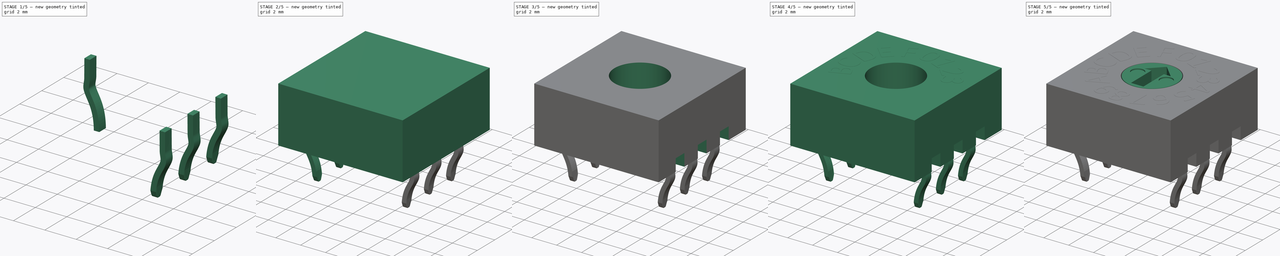
[diagram: build sequence overview — one tinted view per stage of 5, left to right]
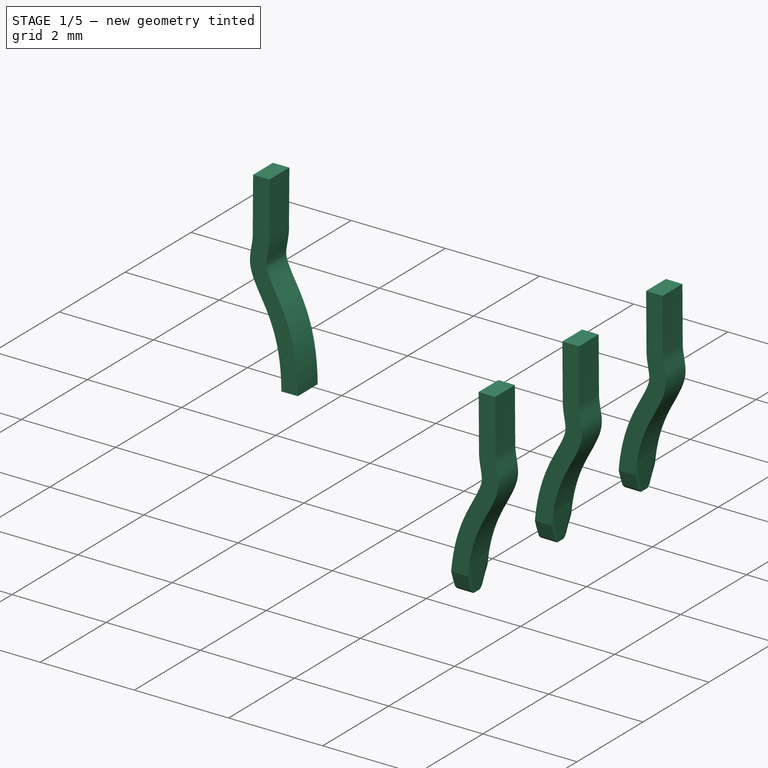
[diagram: stage 1 of 5 — iso view after this stage's code; geometry added in this stage tinted green]
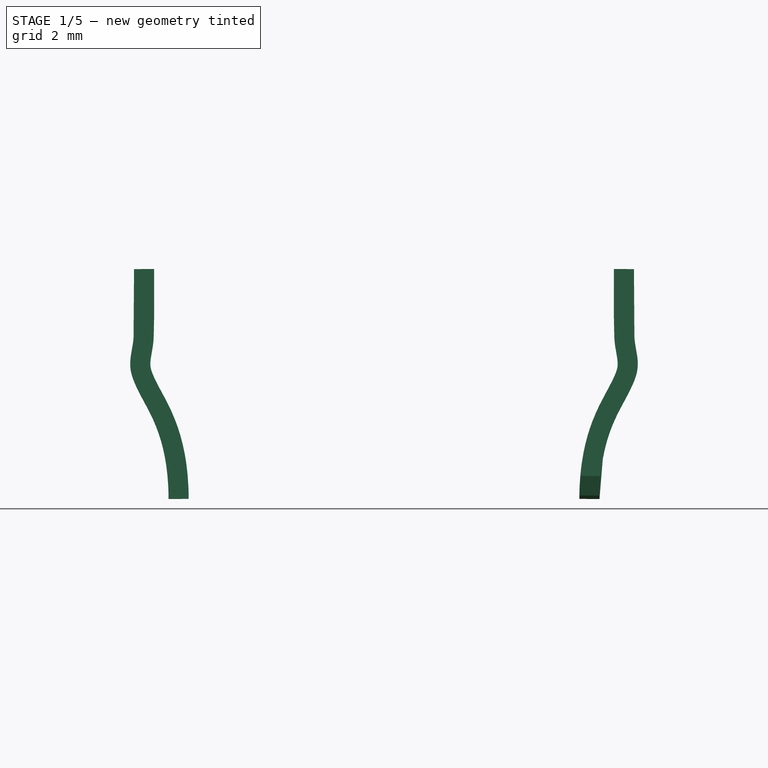
[diagram: stage 1 of 5 — front view after this stage's code; geometry added in this stage tinted green]
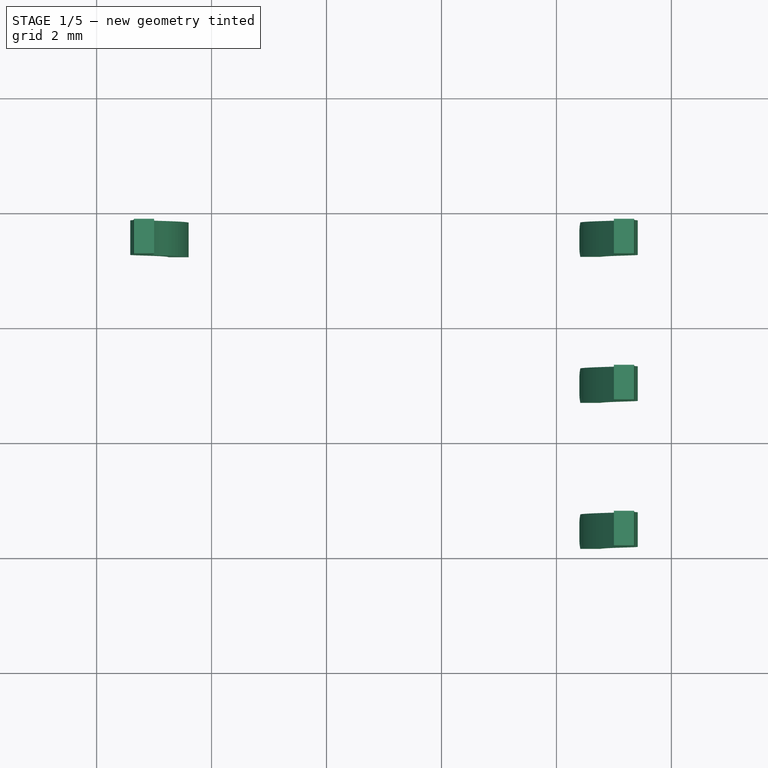
[diagram: stage 1 of 5 — top view after this stage's code; geometry added in this stage tinted green]
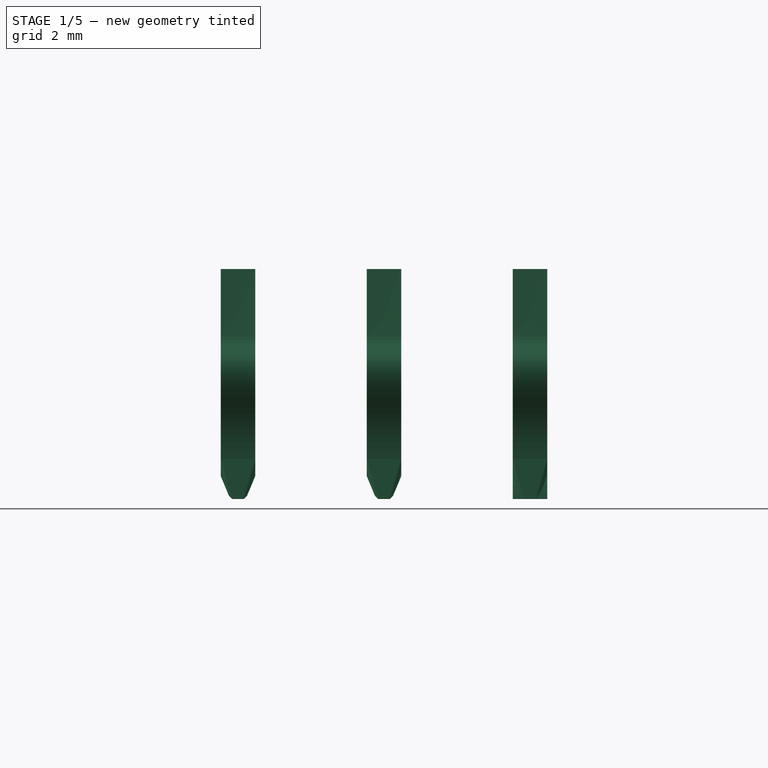
[diagram: stage 1 of 5 — right view after this stage's code; geometry added in this stage tinted green]
FCSTD DOCUMENT  (FreeCAD 0.18R4 (GitTag))
Label: 8421C
License: All rights reserved
LicenseURL: http://en.wikipedia.org/wiki/All_rights_reserved
objects: Part::Part2DObjectPython×23, Part::Extrusion×22, Sketcher::SketchObject×20, PartDesign::Chamfer×12, PartDesign::Body×8, PartDesign::Pocket×6, PartDesign::AdditivePipe×6, PartDesign::Pad×2
note: 113 computed .brp shape members not serialized (recipe doc carries the construction recipe); baked Part::Feature solids carry a one-line shape summary decoded from their .brp

FEATURE [PartDesign::Body] Body011  label="LegC1"
  Group = -> [Sketch017,Sketch018,AdditivePipe001,Chamfer002,Chamfer003]
  Origin = -> Origin011
  Tip = -> Chamfer003
FEATURE [Sketcher::SketchObject] Sketch019
  MapMode = 5
  Support = -> [XY_Plane012]
  sketch-geometry (8):
    g0: LineSegment StartX=0.65 StartY=7.84 StartZ=0 EndX=1 EndY=7.84 EndZ=0
    g1: LineSegment StartX=1 StartY=7.84 StartZ=0 EndX=1 EndY=7.24 EndZ=0
    g2: LineSegment StartX=1 StartY=7.24 StartZ=0 EndX=0.65 EndY=7.24 EndZ=0
    g3: LineSegment StartX=0.65 StartY=7.24 StartZ=0 EndX=0.65 EndY=7.84 EndZ=0
    g4: LineSegment [constr] StartX=1 StartY=0 StartZ=0 EndX=1 EndY=2.46 EndZ=0
    g5: LineSegment [constr] StartX=1 StartY=2.46 StartZ=0 EndX=1 EndY=5 EndZ=0
    g6: LineSegment [constr] StartX=1 StartY=5 StartZ=0 EndX=1 EndY=7.54 EndZ=0
    g7: LineSegment [constr] StartX=1 StartY=7.54 StartZ=0 EndX=1 EndY=10 EndZ=0
  constraints (24):
    c: Coincident(g0,g1)
    c: Coincident(g1,g2)
    c: Coincident(g2,g3)
    c: Coincident(g3,g0)
    c: Horizontal(g0)
    c: Horizontal(g2)
    c: Vertical(g1)
    c: Vertical(g3)
    c: DistanceY(g3,g3) = 0.6
    c: DistanceX(g0,g0) = 0.35
    c: Vertical(g4)
    c: Coincident(g4,g5)
    c: Vertical(g5)
    c: Coincident(g5,g6)
    c: Vertical(g6)
    c: Coincident(g6,g7)
    c: Vertical(g7)
    c: Equal(g7,g4)
    c: Equal(g5,g6)
    c: DistanceY(g6,g6) = 2.54
    c: DistanceY(g4,g7) = 10
    c: Horizontal(g4,g-1)
    c: DistanceX(g-1,g4) = 1
    c: Symmetric(g0,g1,g6)
FEATURE [Sketcher::SketchObject] Sketch020
  MapMode = 5
  Placement = pos=(0,0,0) rot=(1,0,0;1.5708rad)
  Support = -> [XZ_Plane012]
  expr: Constraints[32] = 1mm - 0.35mm / 2
  sketch-geometry (13):
    g0-g6: Circle [constr] x7 (B-spline internal-alignment scaffolding for g7; pole/knot coordinates omitted)
    g7: BSplineCurve PolesCount=7 KnotsCount=5 Degree=3 IsPeriodic=0
    g8-g12: GeomPoint [constr] x5 (B-spline internal-alignment scaffolding for g7; pole/knot coordinates omitted)
  constraints (18):
    c: Radius(g0) = 0.1
    c: Equal(g0, g1-g6) x6
    c: InternalAlignment(g0-g6 -> g7) x7
    c: InternalAlignment(g8-g12 -> g7) x5
    c: Vertical(g1,g7)
    c: Vertical(g7,g5)
    c: Vertical(g4,g2)
    c: Vertical(g1,g2)
    c: DistanceX(g3,g2) = 0.1
    c: DistanceY(g1,g7) = 1
    c: DistanceY(g4,g1) = 1
    c: DistanceY(g7,g5) = 1
    c: DistanceX(g3,g7) = 0.7
    c: DistanceY(g3,g2) = 0.35
    c: DistanceY(g4,g3) = 0.35
    c: DistanceY(g-1,g7) = 0.9
    c: DistanceY(g5,g7) = 3
    c: DistanceX(g-1,g7) = 0.825
FEATURE [PartDesign::AdditivePipe] AdditivePipe002
  AuxilleryCurvelinear = true
  AuxillerySpineTangent = false
  Binormal = (0,0,0)
  Mode = 0
  Profile = -> Sketch019
  Spine = -> Sketch020
  SpineTangent = false
  Transformation = 0
  Transition = 0
FEATURE [PartDesign::Body] Body012  label="Leg1"
  Group = -> [Sketch019,Sketch020,AdditivePipe002,Chamfer004,Chamfer005]
  Origin = -> Origin012
  Tip = -> Chamfer005
FEATURE [Sketcher::SketchObject] Sketch021
  MapMode = 5
  Support = -> [XY_Plane013]
  sketch-geometry (8):
    g0: LineSegment StartX=9 StartY=2.76 StartZ=0 EndX=9.35 EndY=2.76 EndZ=0
    g1: LineSegment StartX=9.35 StartY=2.76 StartZ=0 EndX=9.35 EndY=2.16 EndZ=0
    g2: LineSegment StartX=9.35 StartY=2.16 StartZ=0 EndX=9 EndY=2.16 EndZ=0
    g3: LineSegment StartX=9 StartY=2.16 StartZ=0 EndX=9 EndY=2.76 EndZ=0
    g4: LineSegment [constr] StartX=9 StartY=0 StartZ=0 EndX=9 EndY=2.46 EndZ=0
    g5: LineSegment [constr] StartX=9 StartY=2.46 StartZ=0 EndX=9 EndY=5 EndZ=0
    g6: LineSegment [constr] StartX=9 StartY=5 StartZ=0 EndX=9 EndY=7.54 EndZ=0
    g7: LineSegment [constr] StartX=9 StartY=7.54 StartZ=0 EndX=9 EndY=10 EndZ=0
  constraints (24):
    c: Coincident(g0,g1)
    c: Coincident(g1,g2)
    c: Coincident(g2,g3)
    c: Coincident(g3,g0)
    c: Horizontal(g0)
    c: Horizontal(g2)
    c: Vertical(g1)
    c: Vertical(g3)
    c: DistanceY(g3,g3) = 0.6
    c: DistanceX(g0,g0) = 0.35
    c: Vertical(g4)
    c: Coincident(g4,g5)
    c: Vertical(g5)
    c: Coincident(g5,g6)
    c: Vertical(g6)
    c: Coincident(g6,g7)
    c: Vertical(g7)
    c: Equal(g7,g4)
    c: Equal(g5,g6)
    c: DistanceY(g6,g6) = 2.54
    c: DistanceY(g4,g7) = 10
    c: Horizontal(g4,g-1)
    c: DistanceX(g-1,g4) = 9
    c: Symmetric(g2,g0,g4)
FEATURE [Sketcher::SketchObject] Sketch022
  MapMode = 5
  Placement = pos=(0,0,0) rot=(1,0,0;1.5708rad)
  Support = -> [XZ_Plane013]
  expr: Constraints[30] = 9mm + 0.35mm / 2
  sketch-geometry (13):
    g0-g6: Circle [constr] x7 (B-spline internal-alignment scaffolding for g7; pole/knot coordinates omitted)
    g7: BSplineCurve PolesCount=7 KnotsCount=5 Degree=3 IsPeriodic=0
    g8-g12: GeomPoint [constr] x5 (B-spline internal-alignment scaffolding for g7; pole/knot coordinates omitted)
  constraints (18):
    c: Radius(g0) = 0.1
    c: Equal(g0, g1-g6) x6
    c: InternalAlignment(g0-g6 -> g7) x7
    c: InternalAlignment(g8-g12 -> g7) x5
    c: Vertical(g1,g7)
    c: Vertical(g7,g5)
    c: Vertical(g4,g2)
    c: Vertical(g1,g2)
    c: DistanceY(g1,g7) = 1
    c: DistanceY(g4,g1) = 1
    c: DistanceY(g7,g5) = 1
    c: DistanceY(g3,g2) = 0.35
    c: DistanceY(g4,g3) = 0.35
    c: DistanceY(g-1,g7) = 0.9
    c: DistanceY(g5,g7) = 3
    c: DistanceX(g-1,g7) = 9.175
    c: DistanceX(g1,g3) = 0.1
    c: DistanceX(g7,g3) = 0.7
FEATURE [PartDesign::AdditivePipe] AdditivePipe003
  AuxilleryCurvelinear = true
  AuxillerySpineTangent = false
  Binormal = (0,0,0)
  Mode = 0
  Profile = -> Sketch021
  Spine = -> Sketch022
  SpineTangent = false
  Transformation = 0
  Transition = 0
FEATURE [PartDesign::Chamfer] Chamfer006
  Base = -> AdditivePipe003 [Edge9,Edge7]
  BaseFeature = -> AdditivePipe003
  Size = 0.2
FEATURE [PartDesign::Chamfer] Chamfer007
  Base = -> Chamfer006 [Edge17,Edge4]
  BaseFeature = -> Chamfer006
  Size = 0.2
FEATURE [PartDesign::Body] Body013  label="Leg2"
  Group = -> [Sketch021,Sketch022,AdditivePipe003,Chamfer006,Chamfer007]
  Origin = -> Origin013
  Tip = -> Chamfer007
FEATURE [Sketcher::SketchObject] Sketch023
  MapMode = 5
  Support = -> [XY_Plane014]
  sketch-geometry (8):
    g0: LineSegment StartX=9 StartY=5.3 StartZ=0 EndX=9.35 EndY=5.3 EndZ=0
    g1: LineSegment StartX=9.35 StartY=5.3 StartZ=0 EndX=9.35 EndY=4.7 EndZ=0
    g2: LineSegment StartX=9.35 StartY=4.7 StartZ=0 EndX=9 EndY=4.7 EndZ=0
    g3: LineSegment StartX=9 StartY=4.7 StartZ=0 EndX=9 EndY=5.3 EndZ=0
    g4: LineSegment [constr] StartX=9 StartY=0 StartZ=0 EndX=9 EndY=2.46 EndZ=0
    g5: LineSegment [constr] StartX=9 StartY=2.46 StartZ=0 EndX=9 EndY=5 EndZ=0
    g6: LineSegment [constr] StartX=9 StartY=5 StartZ=0 EndX=9 EndY=7.54 EndZ=0
    g7: LineSegment [constr] StartX=9 StartY=7.54 StartZ=0 EndX=9 EndY=10 EndZ=0
  constraints (24):
    c: Coincident(g0,g1)
    c: Coincident(g1,g2)
    c: Coincident(g2,g3)
    c: Coincident(g3,g0)
    c: Horizontal(g0)
    c: Horizontal(g2)
    c: Vertical(g1)
    c: Vertical(g3)
    c: DistanceY(g3,g3) = 0.6
    c: DistanceX(g0,g0) = 0.35
    c: Vertical(g4)
    c: Coincident(g4,g5)
    c: Vertical(g5)
    c: Coincident(g5,g6)
    c: Vertical(g6)
    c: Coincident(g6,g7)
    c: Vertical(g7)
    c: Equal(g7,g4)
    c: Equal(g5,g6)
    c: DistanceY(g6,g6) = 2.54
    c: DistanceY(g4,g7) = 10
    c: Horizontal(g4,g-1)
    c: DistanceX(g-1,g4) = 9
    c: Symmetric(g2,g0,g5)
FEATURE [Sketcher::SketchObject] Sketch024
  MapMode = 5
  Placement = pos=(0,0,0) rot=(1,0,0;1.5708rad)
  Support = -> [XZ_Plane014]
  expr: Constraints[30] = 9mm + 0.35mm / 2
  sketch-geometry (13):
    g0-g6: Circle [constr] x7 (B-spline internal-alignment scaffolding for g7; pole/knot coordinates omitted)
    g7: BSplineCurve PolesCount=7 KnotsCount=5 Degree=3 IsPeriodic=0
    g8-g12: GeomPoint [constr] x5 (B-spline internal-alignment scaffolding for g7; pole/knot coordinates omitted)
  constraints (18):
    c: Radius(g0) = 0.1
    c: Equal(g0, g1-g6) x6
    c: InternalAlignment(g0-g6 -> g7) x7
    c: InternalAlignment(g8-g12 -> g7) x5
    c: Vertical(g1,g7)
    c: Vertical(g7,g5)
    c: Vertical(g4,g2)
    c: Vertical(g1,g2)
    c: DistanceY(g1,g7) = 1
    c: DistanceY(g4,g1) = 1
    c: DistanceY(g7,g5) = 1
    c: DistanceY(g3,g2) = 0.35
    c: DistanceY(g4,g3) = 0.35
    c: DistanceY(g-1,g7) = 0.9
    c: DistanceY(g5,g7) = 3
    c: DistanceX(g-1,g7) = 9.175
    c: DistanceX(g1,g3) = 0.1
    c: DistanceX(g7,g3) = 0.7
FEATURE [PartDesign::AdditivePipe] AdditivePipe004
  AuxilleryCurvelinear = true
  AuxillerySpineTangent = false
  Binormal = (0,0,0)
  Mode = 0
  Profile = -> Sketch023
  Spine = -> Sketch024
  SpineTangent = false
  Transformation = 0
  Transition = 0
FEATURE [PartDesign::Chamfer] Chamfer008
  Base = -> AdditivePipe004 [Edge9,Edge7]
  BaseFeature = -> AdditivePipe004
  Size = 0.2
FEATURE [PartDesign::Chamfer] Chamfer009
  Base = -> Chamfer008 [Edge17,Edge4]
  BaseFeature = -> Chamfer008
  Size = 0.2
FEATURE [PartDesign::Body] Body014  label="LegC2"
  Group = -> [Sketch023,Sketch024,AdditivePipe004,Chamfer008,Chamfer009]
  Origin = -> Origin014
  Tip = -> Chamfer009
FEATURE [Sketcher::SketchObject] Sketch025
  MapMode = 5
  Support = -> [XY_Plane015]
  sketch-geometry (8):
    g0: LineSegment StartX=9 StartY=7.84 StartZ=0 EndX=9.35 EndY=7.84 EndZ=0
    g1: LineSegment StartX=9.35 StartY=7.84 StartZ=0 EndX=9.35 EndY=7.24 EndZ=0
    g2: LineSegment StartX=9.35 StartY=7.24 StartZ=0 EndX=9 EndY=7.24 EndZ=0
    g3: LineSegment StartX=9 StartY=7.24 StartZ=0 EndX=9 EndY=7.84 EndZ=0
    g4: LineSegment [constr] StartX=9 StartY=0 StartZ=0 EndX=9 EndY=2.46 EndZ=0
    g5: LineSegment [constr] StartX=9 StartY=2.46 StartZ=0 EndX=9 EndY=5 EndZ=0
    g6: LineSegment [constr] StartX=9 StartY=5 StartZ=0 EndX=9 EndY=7.54 EndZ=0
    g7: LineSegment [constr] StartX=9 StartY=7.54 StartZ=0 EndX=9 EndY=10 EndZ=0
  constraints (24):
    c: Coincident(g0,g1)
    c: Coincident(g1,g2)
    c: Coincident(g2,g3)
    c: Coincident(g3,g0)
    c: Horizontal(g0)
    c: Horizontal(g2)
    c: Vertical(g1)
    c: Vertical(g3)
    c: DistanceY(g3,g3) = 0.6
    c: DistanceX(g0,g0) = 0.35
    c: Vertical(g4)
    c: Coincident(g4,g5)
    c: Vertical(g5)
    c: Coincident(g5,g6)
    c: Vertical(g6)
    c: Coincident(g6,g7)
    c: Vertical(g7)
    c: Equal(g7,g4)
    c: Equal(g5,g6)
    c: DistanceY(g6,g6) = 2.54
    c: DistanceY(g4,g7) = 10
    c: Horizontal(g4,g-1)
    c: DistanceX(g-1,g4) = 9
    c: Symmetric(g2,g0,g6)
FEATURE [Sketcher::SketchObject] Sketch026
  MapMode = 5
  Placement = pos=(0,0,0) rot=(1,0,0;1.5708rad)
  Support = -> [XZ_Plane015]
  expr: Constraints[30] = 9mm + 0.35mm / 2
  sketch-geometry (13):
    g0-g6: Circle [constr] x7 (B-spline internal-alignment scaffolding for g7; pole/knot coordinates omitted)
    g7: BSplineCurve PolesCount=7 KnotsCount=5 Degree=3 IsPeriodic=0
    g8-g12: GeomPoint [constr] x5 (B-spline internal-alignment scaffolding for g7; pole/knot coordinates omitted)
  constraints (18):
    c: Radius(g0) = 0.1
    c: Equal(g0, g1-g6) x6
    c: InternalAlignment(g0-g6 -> g7) x7
    c: InternalAlignment(g8-g12 -> g7) x5
    c: Vertical(g1,g7)
    c: Vertical(g7,g5)
    c: Vertical(g4,g2)
    c: Vertical(g1,g2)
    c: DistanceY(g1,g7) = 1
    c: DistanceY(g4,g1) = 1
    c: DistanceY(g7,g5) = 1
    c: DistanceY(g3,g2) = 0.35
    c: DistanceY(g4,g3) = 0.35
    c: DistanceY(g-1,g7) = 0.9
    c: DistanceY(g5,g7) = 3
    c: DistanceX(g-1,g7) = 9.175
    c: DistanceX(g1,g3) = 0.1
    c: DistanceX(g7,g3) = 0.7
FEATURE [PartDesign::AdditivePipe] AdditivePipe005
  AuxilleryCurvelinear = true
  AuxillerySpineTangent = false
  Binormal = (0,0,0)
  Mode = 0
  Profile = -> Sketch025
  Spine = -> Sketch026
  SpineTangent = false
  Transformation = 0
  Transition = 0
FEATURE [PartDesign::Chamfer] Chamfer011
  Base = -> AdditivePipe005 [Edge9,Edge7]
  BaseFeature = -> AdditivePipe005
  Size = 0.2
FEATURE [PartDesign::Chamfer] Chamfer010
  Base = -> Chamfer011 [Edge17,Edge4]
  BaseFeature = -> Chamfer011
  Size = 0.2
FEATURE [PartDesign::Body] Body015  label="Leg8"
  Group = -> [Sketch025,Sketch026,AdditivePipe005,Chamfer011,Chamfer010]
  Origin = -> Origin015
  Tip = -> Chamfer010
note: 22 file-system paths scrubbed to <path> (originals preserved in the JSON sidecar)
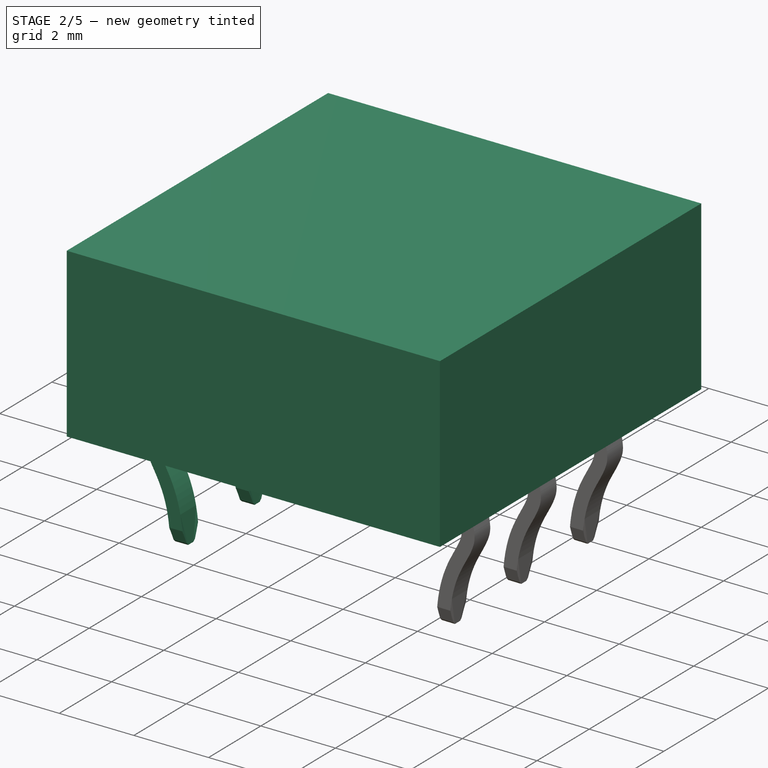
[diagram: stage 2 of 5 — iso view after this stage's code; geometry added in this stage tinted green]
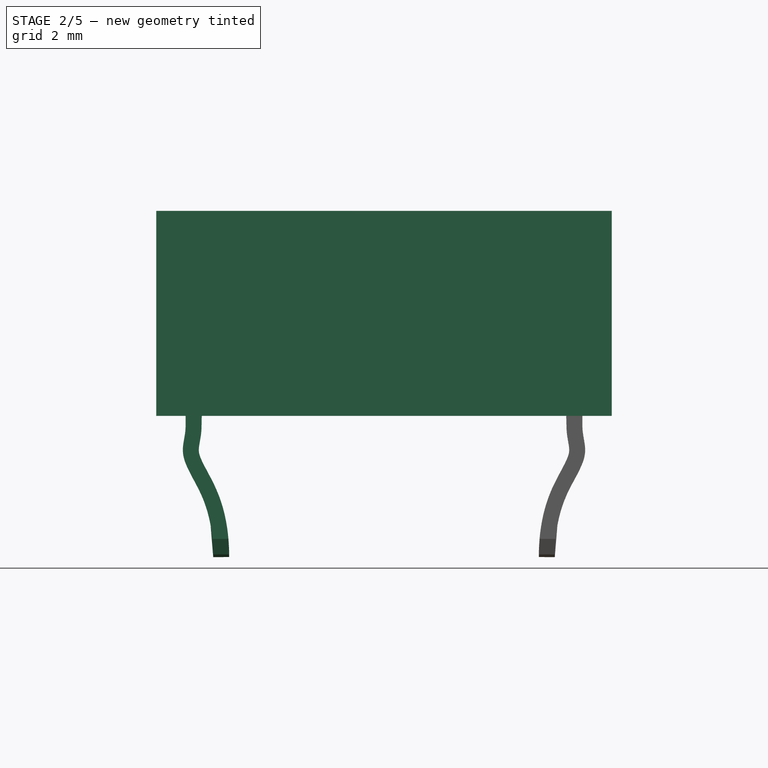
[diagram: stage 2 of 5 — front view after this stage's code; geometry added in this stage tinted green]
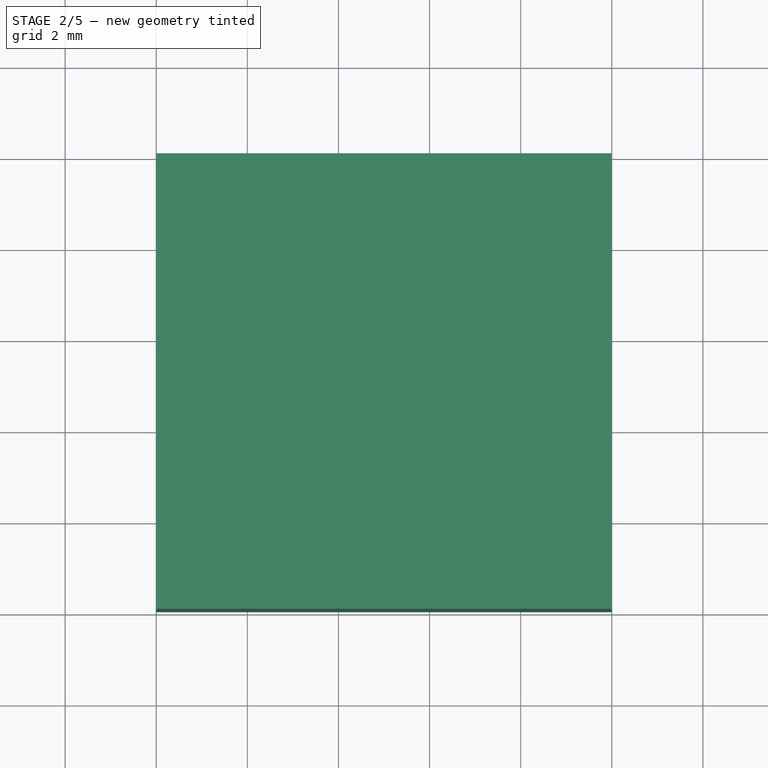
[diagram: stage 2 of 5 — top view after this stage's code; geometry added in this stage tinted green]
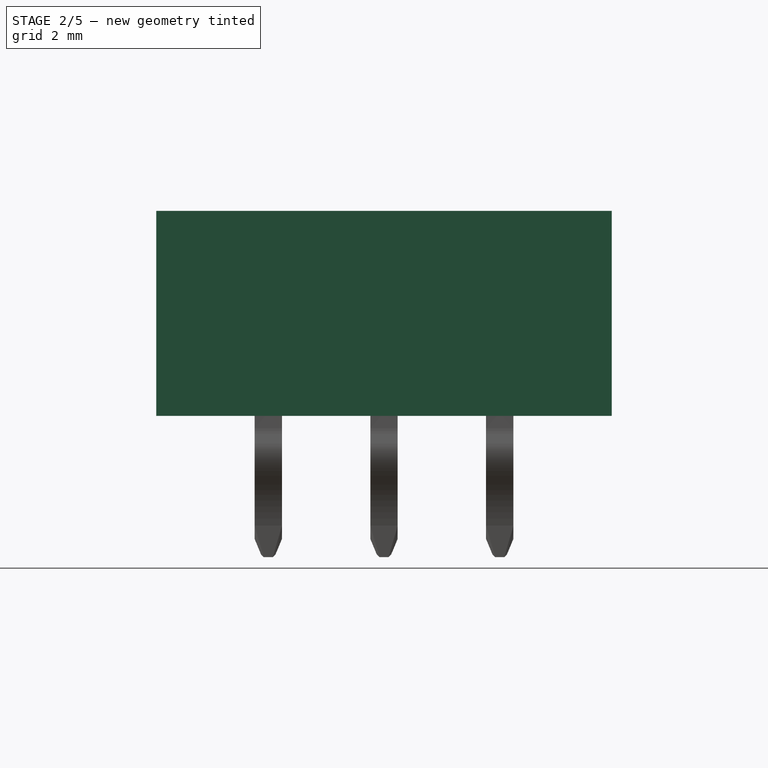
[diagram: stage 2 of 5 — right view after this stage's code; geometry added in this stage tinted green]
FEATURE [Sketcher::SketchObject] Sketch
  MapMode = 5
  Support = -> [XY_Plane]
  sketch-geometry (4):
    g0: LineSegment StartX=0 StartY=0 StartZ=0 EndX=10 EndY=0 EndZ=0
    g1: LineSegment StartX=10 StartY=0 StartZ=0 EndX=10 EndY=10 EndZ=0
    g2: LineSegment StartX=10 StartY=10 StartZ=0 EndX=0 EndY=10 EndZ=0
    g3: LineSegment StartX=0 StartY=10 StartZ=0 EndX=0 EndY=0 EndZ=0
  constraints (11):
    c: Coincident(g0,g1)
    c: Coincident(g1,g2)
    c: Coincident(g2,g3)
    c: Coincident(g3,g0)
    c: Horizontal(g0)
    c: Horizontal(g2)
    c: Vertical(g1)
    c: Vertical(g3)
    c: Coincident(g0,g-1)
    c: Equal(g2,g1)
    c: DistanceX(g2,g2) = 10
FEATURE [PartDesign::Pad] Pad
  Length = 4.5
  Length2 = 100
  Profile = -> Sketch
  Type = 0
FEATURE [PartDesign::Body] Body  label="Main"
  Group = -> [Sketch,Pad,Sketch001,Pocket,Sketch006,Pocket003,Sketch007,Pocket004,Sketch008,Pocket005]
  Origin = -> Origin
  Tip = -> Pocket005
FEATURE [Sketcher::SketchObject] Sketch015
  MapMode = 5
  Support = -> [XY_Plane010]
  sketch-geometry (8):
    g0: LineSegment StartX=0.65 StartY=2.76 StartZ=0 EndX=1 EndY=2.76 EndZ=0
    g1: LineSegment StartX=1 StartY=2.76 StartZ=0 EndX=1 EndY=2.16 EndZ=0
    g2: LineSegment StartX=1 StartY=2.16 StartZ=0 EndX=0.65 EndY=2.16 EndZ=0
    g3: LineSegment StartX=0.65 StartY=2.16 StartZ=0 EndX=0.65 EndY=2.76 EndZ=0
    g4: LineSegment [constr] StartX=1 StartY=0 StartZ=0 EndX=1 EndY=2.46 EndZ=0
    g5: LineSegment [constr] StartX=1 StartY=2.46 StartZ=0 EndX=1 EndY=5 EndZ=0
    g6: LineSegment [constr] StartX=1 StartY=5 StartZ=0 EndX=1 EndY=7.54 EndZ=0
    g7: LineSegment [constr] StartX=1 StartY=7.54 StartZ=0 EndX=1 EndY=10 EndZ=0
  constraints (24):
    c: Coincident(g0,g1)
    c: Coincident(g1,g2)
    c: Coincident(g2,g3)
    c: Coincident(g3,g0)
    c: Horizontal(g0)
    c: Horizontal(g2)
    c: Vertical(g1)
    c: Vertical(g3)
    c: DistanceY(g3,g3) = 0.6
    c: DistanceX(g0,g0) = 0.35
    c: Vertical(g4)
    c: Coincident(g4,g5)
    c: Vertical(g5)
    c: Coincident(g5,g6)
    c: Vertical(g6)
    c: Coincident(g6,g7)
    c: Vertical(g7)
    c: Equal(g7,g4)
    c: Equal(g5,g6)
    c: DistanceY(g6,g6) = 2.54
    c: DistanceY(g4,g7) = 10
    c: Horizontal(g4,g-1)
    c: DistanceX(g-1,g4) = 1
    c: Symmetric(g1,g0,g4)
FEATURE [Sketcher::SketchObject] Sketch016
  MapMode = 5
  Placement = pos=(0,0,0) rot=(1,0,0;1.5708rad)
  Support = -> [XZ_Plane010]
  expr: Constraints[32] = 1mm - 0.35mm / 2
  sketch-geometry (13):
    g0-g6: Circle [constr] x7 (B-spline internal-alignment scaffolding for g7; pole/knot coordinates omitted)
    g7: BSplineCurve PolesCount=7 KnotsCount=5 Degree=3 IsPeriodic=0
    g8-g12: GeomPoint [constr] x5 (B-spline internal-alignment scaffolding for g7; pole/knot coordinates omitted)
  constraints (18):
    c: Radius(g0) = 0.1
    c: Equal(g0, g1-g6) x6
    c: InternalAlignment(g0-g6 -> g7) x7
    c: InternalAlignment(g8-g12 -> g7) x5
    c: Vertical(g1,g7)
    c: Vertical(g7,g5)
    c: Vertical(g4,g2)
    c: Vertical(g1,g2)
    c: DistanceX(g3,g2) = 0.1
    c: DistanceY(g1,g7) = 1
    c: DistanceY(g4,g1) = 1
    c: DistanceY(g7,g5) = 1
    c: DistanceX(g3,g7) = 0.7
    c: DistanceY(g3,g2) = 0.35
    c: DistanceY(g4,g3) = 0.35
    c: DistanceY(g-1,g7) = 0.9
    c: DistanceY(g5,g7) = 3
    c: DistanceX(g-1,g7) = 0.825
FEATURE [PartDesign::AdditivePipe] AdditivePipe
  AuxilleryCurvelinear = true
  AuxillerySpineTangent = false
  Binormal = (0,0,0)
  Mode = 0
  Profile = -> Sketch015
  Spine = -> Sketch016
  SpineTangent = false
  Transformation = 0
  Transition = 0
FEATURE [PartDesign::Chamfer] Chamfer
  Base = -> AdditivePipe [Edge9,Edge7]
  BaseFeature = -> AdditivePipe
  Size = 0.2
FEATURE [PartDesign::Chamfer] Chamfer001
  Base = -> Chamfer [Edge17,Edge4]
  BaseFeature = -> Chamfer
  Size = 0.2
FEATURE [PartDesign::Body] Body010  label="Leg4"
  Group = -> [Sketch015,Sketch016,AdditivePipe,Chamfer,Chamfer001]
  Origin = -> Origin010
  Tip = -> Chamfer001
FEATURE [Sketcher::SketchObject] Sketch017
  MapMode = 5
  Support = -> [XY_Plane011]
  sketch-geometry (8):
    g0: LineSegment StartX=0.65 StartY=5.3 StartZ=0 EndX=1 EndY=5.3 EndZ=0
    g1: LineSegment StartX=1 StartY=5.3 StartZ=0 EndX=1 EndY=4.7 EndZ=0
    g2: LineSegment StartX=1 StartY=4.7 StartZ=0 EndX=0.65 EndY=4.7 EndZ=0
    g3: LineSegment StartX=0.65 StartY=4.7 StartZ=0 EndX=0.65 EndY=5.3 EndZ=0
    g4: LineSegment [constr] StartX=1 StartY=0 StartZ=0 EndX=1 EndY=2.46 EndZ=0
    g5: LineSegment [constr] StartX=1 StartY=2.46 StartZ=0 EndX=1 EndY=5 EndZ=0
    g6: LineSegment [constr] StartX=1 StartY=5 StartZ=0 EndX=1 EndY=7.54 EndZ=0
    g7: LineSegment [constr] StartX=1 StartY=7.54 StartZ=0 EndX=1 EndY=10 EndZ=0
  constraints (24):
    c: Coincident(g0,g1)
    c: Coincident(g1,g2)
    c: Coincident(g2,g3)
    c: Coincident(g3,g0)
    c: Horizontal(g0)
    c: Horizontal(g2)
    c: Vertical(g1)
    c: Vertical(g3)
    c: DistanceY(g3,g3) = 0.6
    c: DistanceX(g0,g0) = 0.35
    c: Vertical(g4)
    c: Coincident(g4,g5)
    c: Vertical(g5)
    c: Coincident(g5,g6)
    c: Vertical(g6)
    c: Coincident(g6,g7)
    c: Vertical(g7)
    c: Equal(g7,g4)
    c: Equal(g5,g6)
    c: DistanceY(g6,g6) = 2.54
    c: DistanceY(g4,g7) = 10
    c: Horizontal(g4,g-1)
    c: DistanceX(g-1,g4) = 1
    c: Symmetric(g0,g1,g5)
FEATURE [Sketcher::SketchObject] Sketch018
  MapMode = 5
  Placement = pos=(0,0,0) rot=(1,0,0;1.5708rad)
  Support = -> [XZ_Plane011]
  expr: Constraints[32] = 1mm - 0.35mm / 2
  sketch-geometry (13):
    g0-g6: Circle [constr] x7 (B-spline internal-alignment scaffolding for g7; pole/knot coordinates omitted)
    g7: BSplineCurve PolesCount=7 KnotsCount=5 Degree=3 IsPeriodic=0
    g8-g12: GeomPoint [constr] x5 (B-spline internal-alignment scaffolding for g7; pole/knot coordinates omitted)
  constraints (18):
    c: Radius(g0) = 0.1
    c: Equal(g0, g1-g6) x6
    c: InternalAlignment(g0-g6 -> g7) x7
    c: InternalAlignment(g8-g12 -> g7) x5
    c: Vertical(g1,g7)
    c: Vertical(g7,g5)
    c: Vertical(g4,g2)
    c: Vertical(g1,g2)
    c: DistanceX(g3,g2) = 0.1
    c: DistanceY(g1,g7) = 1
    c: DistanceY(g4,g1) = 1
    c: DistanceY(g7,g5) = 1
    c: DistanceX(g3,g7) = 0.7
    c: DistanceY(g3,g2) = 0.35
    c: DistanceY(g4,g3) = 0.35
    c: DistanceY(g-1,g7) = 0.9
    c: DistanceY(g5,g7) = 3
    c: DistanceX(g-1,g7) = 0.825
FEATURE [PartDesign::AdditivePipe] AdditivePipe001
  AuxilleryCurvelinear = true
  AuxillerySpineTangent = false
  Binormal = (0,0,0)
  Mode = 0
  Profile = -> Sketch017
  Spine = -> Sketch018
  SpineTangent = false
  Transformation = 0
  Transition = 0
FEATURE [PartDesign::Chamfer] Chamfer002
  Base = -> AdditivePipe001 [Edge9,Edge7]
  BaseFeature = -> AdditivePipe001
  Size = 0.2
FEATURE [PartDesign::Chamfer] Chamfer003
  Base = -> Chamfer002 [Edge17,Edge4]
  BaseFeature = -> Chamfer002
  Size = 0.2
FEATURE [PartDesign::Chamfer] Chamfer004
  Base = -> AdditivePipe002 [Edge9,Edge7]
  BaseFeature = -> AdditivePipe002
  Size = 0.2
FEATURE [PartDesign::Chamfer] Chamfer005
  Base = -> Chamfer004 [Edge17,Edge4]
  BaseFeature = -> Chamfer004
  Size = 0.2
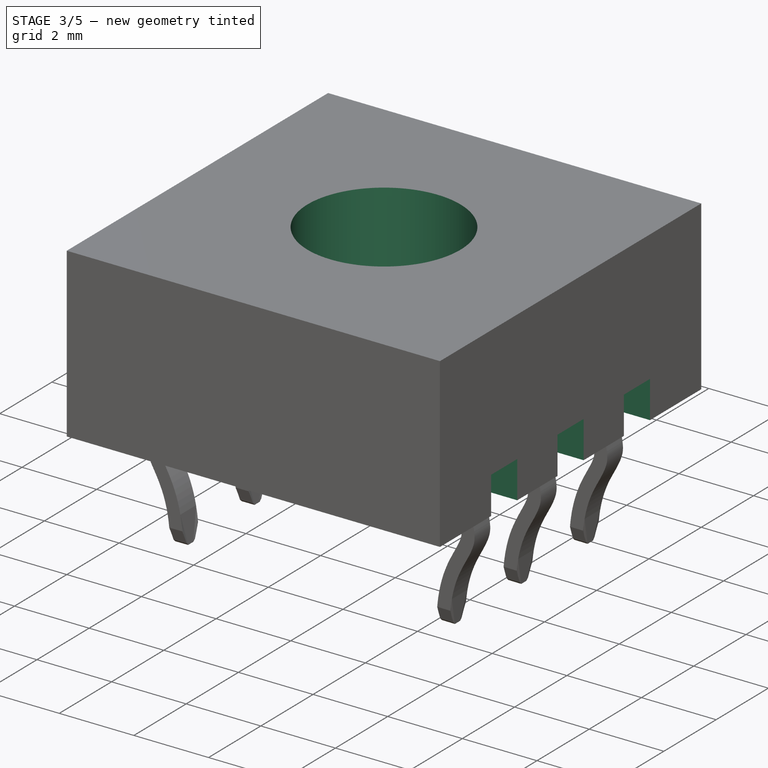
[diagram: stage 3 of 5 — iso view after this stage's code; geometry added in this stage tinted green]
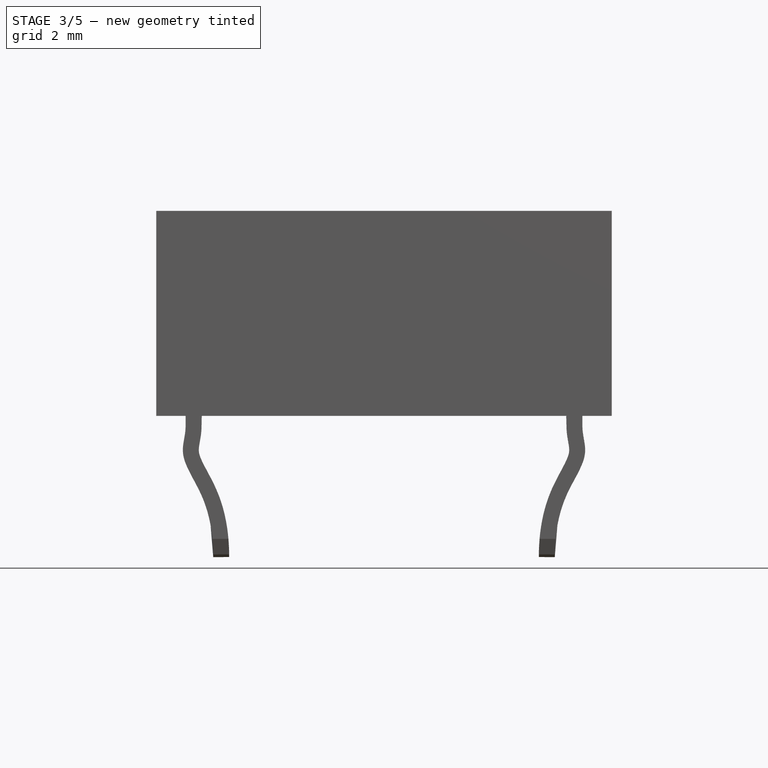
[diagram: stage 3 of 5 — front view after this stage's code; geometry added in this stage tinted green]
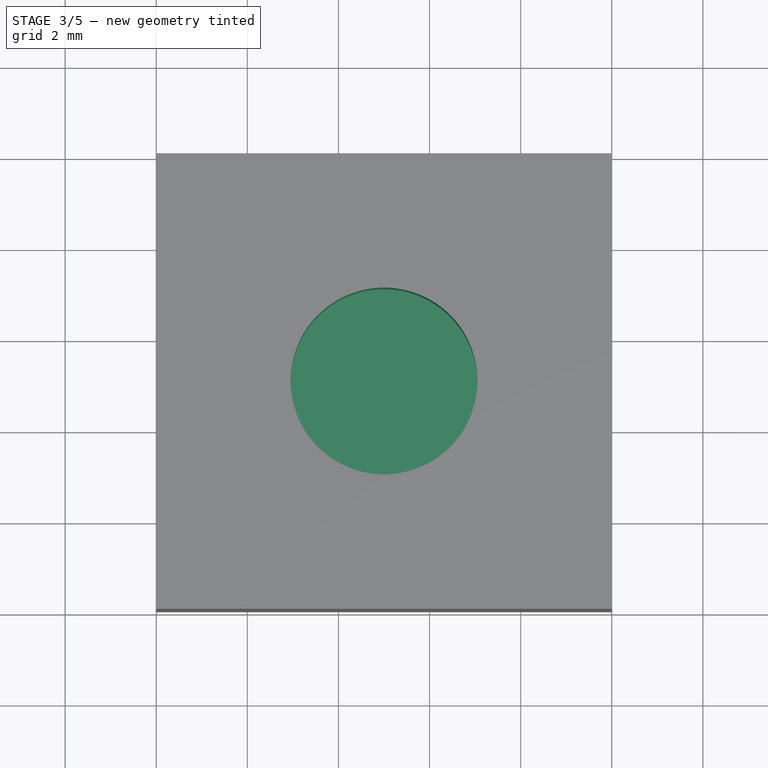
[diagram: stage 3 of 5 — top view after this stage's code; geometry added in this stage tinted green]
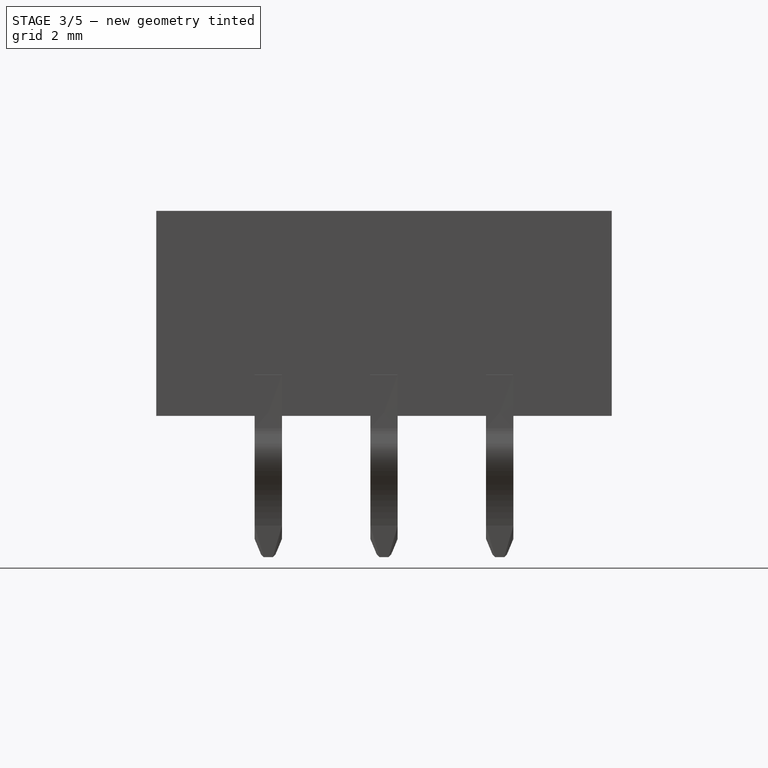
[diagram: stage 3 of 5 — right view after this stage's code; geometry added in this stage tinted green]
FEATURE [Sketcher::SketchObject] Sketch001
  MapMode = 5
  Placement = pos=(0,0,4.5) rot=(0,0,1;0rad)
  Support = -> [Pad]
  sketch-geometry (5):
    g0: LineSegment [constr] StartX=0 StartY=0 StartZ=0 EndX=10 EndY=0 EndZ=0
    g1: LineSegment [constr] StartX=10 StartY=0 StartZ=0 EndX=10 EndY=10 EndZ=0
    g2: LineSegment [constr] StartX=10 StartY=10 StartZ=0 EndX=0 EndY=10 EndZ=0
    g3: LineSegment [constr] StartX=0 StartY=10 StartZ=0 EndX=0 EndY=0 EndZ=0
    g4: Circle CenterX=5 CenterY=5 CenterZ=0 NormalX=0 NormalY=0 NormalZ=1 AngleXU=0 Radius=2.05
  constraints (13):
    c: Coincident(g0,g1)
    c: Coincident(g1,g2)
    c: Coincident(g2,g3)
    c: Coincident(g3,g0)
    c: Horizontal(g0)
    c: Horizontal(g2)
    c: Vertical(g1)
    c: Vertical(g3)
    c: Coincident(g0,g-1)
    c: Equal(g2,g1)
    c: DistanceX(g2,g2) = 10
    c: Symmetric(g2,g0,g4)
    c: Radius(g4) = 2.05
FEATURE [PartDesign::Pocket] Pocket
  BaseFeature = -> Pad
  Length = 2
  Length2 = 100
  Profile = -> Sketch001
  Type = 0
FEATURE [Sketcher::SketchObject] Sketch006
  MapMode = 5
  Support = -> [XY_Plane]
  sketch-geometry (16):
    g0: LineSegment [constr] StartX=0 StartY=0 StartZ=0 EndX=10 EndY=0 EndZ=0
    g1: LineSegment [constr] StartX=10 StartY=0 StartZ=0 EndX=10 EndY=10 EndZ=0
    g2: LineSegment [constr] StartX=10 StartY=10 StartZ=0 EndX=0 EndY=10 EndZ=0
    g3: LineSegment [constr] StartX=0 StartY=10 StartZ=0 EndX=0 EndY=0 EndZ=0
    g4: LineSegment StartX=2 StartY=9 StartZ=0 EndX=8 EndY=9 EndZ=0
    g5: LineSegment StartX=8 StartY=9 StartZ=0 EndX=8 EndY=1 EndZ=0
    g6: LineSegment StartX=8 StartY=1 StartZ=0 EndX=2 EndY=1 EndZ=0
    g7: LineSegment StartX=2 StartY=1 StartZ=0 EndX=2 EndY=9 EndZ=0
    g8: LineSegment StartX=3.75 StartY=6.25 StartZ=0 EndX=6.25 EndY=6.25 EndZ=0
    g9: LineSegment StartX=6.25 StartY=6.25 StartZ=0 EndX=6.25 EndY=3.75 EndZ=0
    g10: LineSegment StartX=6.25 StartY=3.75 StartZ=0 EndX=3.75 EndY=3.75 EndZ=0
    g11: LineSegment StartX=3.75 StartY=3.75 StartZ=0 EndX=3.75 EndY=6.25 EndZ=0
    g12: LineSegment [constr] StartX=2 StartY=9 StartZ=0 EndX=3.75 EndY=6.25 EndZ=0
    g13: LineSegment [constr] StartX=8 StartY=1 StartZ=0 EndX=6.25 EndY=3.75 EndZ=0
    g14: LineSegment [constr] StartX=3.75 StartY=3.75 StartZ=0 EndX=2 EndY=1 EndZ=0
    g15: LineSegment [constr] StartX=6.25 StartY=6.25 StartZ=0 EndX=8 EndY=9 EndZ=0
  constraints (43):
    c: Coincident(g0,g1)
    c: Coincident(g1,g2)
    c: Coincident(g2,g3)
    c: Coincident(g3,g0)
    c: Horizontal(g0)
    c: Horizontal(g2)
    c: Vertical(g1)
    c: Vertical(g3)
    c: Coincident(g0,g-1)
    c: Equal(g2,g1)
    c: DistanceX(g2,g2) = 10
    c: Coincident(g4,g5)
    c: Coincident(g5,g6)
    c: Coincident(g6,g7)
    c: Coincident(g7,g4)
    c: Horizontal(g4)
    c: Horizontal(g6)
    c: Vertical(g5)
    c: Vertical(g7)
    c: DistanceX(g-1,g6) = 2
    c: DistanceX(g5,g0) = 2
    c: DistanceY(g4,g2) = 1
    c: DistanceY(g-1,g6) = 1
    c: Coincident(g8,g9)
    c: Coincident(g9,g10)
    c: Coincident(g10,g11)
    c: Coincident(g11,g8)
    c: Horizontal(g8)
    c: Horizontal(g10)
    c: Vertical(g9)
    c: Vertical(g11)
    c: Equal(g8,g9)
    c: DistanceX(g8,g8) = 2.5
    c: Coincident(g12,g4)
    c: Coincident(g12,g8)
    c: Coincident(g13,g5)
    c: Coincident(g13,g9)
    c: Coincident(g14,g10)
    c: Coincident(g14,g6)
    c: Equal(g13,g14)
    c: Equal(g14,g12)
    c: Coincident(g15,g8)
    c: Coincident(g15,g4)
FEATURE [PartDesign::Pocket] Pocket003
  BaseFeature = -> Pocket
  Length = 0.1
  Length2 = 100
  Profile = -> Sketch006
  Reversed = true
  Type = 0
FEATURE [Sketcher::SketchObject] Sketch007
  MapMode = 5
  Support = -> [XY_Plane]
  sketch-geometry (5):
    g0: LineSegment [constr] StartX=0 StartY=0 StartZ=0 EndX=10 EndY=0 EndZ=0
    g1: LineSegment [constr] StartX=10 StartY=0 StartZ=0 EndX=10 EndY=10 EndZ=0
    g2: LineSegment [constr] StartX=10 StartY=10 StartZ=0 EndX=0 EndY=10 EndZ=0
    g3: LineSegment [constr] StartX=0 StartY=10 StartZ=0 EndX=0 EndY=0 EndZ=0
    g4: Circle CenterX=5 CenterY=5 CenterZ=0 NormalX=0 NormalY=0 NormalZ=1 AngleXU=0 Radius=0.5
  constraints (13):
    c: Coincident(g0,g1)
    c: Coincident(g1,g2)
    c: Coincident(g2,g3)
    c: Coincident(g3,g0)
    c: Horizontal(g0)
    c: Horizontal(g2)
    c: Vertical(g1)
    c: Vertical(g3)
    c: Coincident(g0,g-1)
    c: Equal(g2,g1)
    c: DistanceX(g2,g2) = 10
    c: Radius(g4) = 0.5
    c: Symmetric(g2,g0,g4)
FEATURE [PartDesign::Pocket] Pocket004
  BaseFeature = -> Pocket003
  Length = 0.1
  Length2 = 100
  Profile = -> Sketch007
  Reversed = true
  Type = 0
FEATURE [Part::Part2DObjectPython] ShapeString016  label="Pin8"  # Draft 2D object (typed FeaturePython)
  FontFile = <path>
  Placement = pos=(6.4,6.8,0.1) rot=(0,1,0;3.14159rad)
  Size = 2
  String = 8
  Tracking = 0
FEATURE [Part::Extrusion] Extrude016  label="ExtrudePin8"
  Base = -> ShapeString016
  Dir = (1e-16,0,-1)
  DirMode = 2
  FaceMakerClass = Part::FaceMakerBullseye
  LengthFwd = 0.1
  LengthRev = 0
  Solid = false
  Symmetric = false
FEATURE [Part::Part2DObjectPython] ShapeString017  label="Pin1"  # Draft 2D object (typed FeaturePython)
  FontFile = <path>
  Placement = pos=(3.8,6.8,0.1) rot=(0,1,0;3.14159rad)
  Size = 2
  String = 1
  Tracking = 0
FEATURE [Part::Part2DObjectPython] ShapeString018  label="PinC1"  # Draft 2D object (typed FeaturePython)
  FontFile = <path>
  Placement = pos=(3.5,4.2,0.1) rot=(0,1,0;3.14159rad)
  Size = 2
  String = C
  Tracking = 0
FEATURE [Part::Part2DObjectPython] ShapeString019  label="PinC2"  # Draft 2D object (typed FeaturePython)
  FontFile = <path>
  Placement = pos=(7.8,4.2,0.1) rot=(0,1,0;3.14159rad)
  Size = 2
  String = C
  Tracking = 0
FEATURE [Part::Part2DObjectPython] ShapeString020  label="Pin4"  # Draft 2D object (typed FeaturePython)
  FontFile = <path>
  Placement = pos=(4.1,1.5,0.1) rot=(0,1,0;3.14159rad)
  Size = 2
  String = 4
  Tracking = 0
FEATURE [Part::Part2DObjectPython] ShapeString021  label="Pin2"  # Draft 2D object (typed FeaturePython)
  FontFile = <path>
  Placement = pos=(6.4,1.5,0.1) rot=(0,1,0;3.14159rad)
  Size = 2
  String = 2
  Tracking = 0
FEATURE [Part::Extrusion] Extrude017  label="ExtrudePin1"
  Base = -> ShapeString017
  Dir = (1e-16,0,-1)
  DirMode = 2
  FaceMakerClass = Part::FaceMakerBullseye
  LengthFwd = 0.1
  LengthRev = 0
  Solid = false
  Symmetric = false
FEATURE [Part::Extrusion] Extrude018  label="ExtrudePinC1"
  Base = -> ShapeString018
  Dir = (1e-16,0,-1)
  DirMode = 2
  FaceMakerClass = Part::FaceMakerBullseye
  LengthFwd = 0.1
  LengthRev = 0
  Solid = false
  Symmetric = false
FEATURE [Part::Extrusion] Extrude019  label="ExtrudePinC2"
  Base = -> ShapeString019
  Dir = (1e-16,0,-1)
  DirMode = 2
  FaceMakerClass = Part::FaceMakerBullseye
  LengthFwd = 0.1
  LengthRev = 0
  Solid = false
  Symmetric = false
FEATURE [Part::Extrusion] Extrude020  label="ExtrudePin4"
  Base = -> ShapeString020
  Dir = (1e-16,0,-1)
  DirMode = 2
  FaceMakerClass = Part::FaceMakerBullseye
  LengthFwd = 0.1
  LengthRev = 0
  Solid = false
  Symmetric = false
FEATURE [Part::Extrusion] Extrude021  label="ExtrudePin2"
  Base = -> ShapeString021
  Dir = (1e-16,0,-1)
  DirMode = 2
  FaceMakerClass = Part::FaceMakerBullseye
  LengthFwd = 0.1
  LengthRev = 0
  Solid = false
  Symmetric = false
FEATURE [Sketcher::SketchObject] Sketch008
  MapMode = 5
  Support = -> [XY_Plane]
  sketch-geometry (32):
    g0: LineSegment [constr] StartX=0 StartY=0 StartZ=0 EndX=10 EndY=0 EndZ=0
    g1: LineSegment [constr] StartX=10 StartY=10 StartZ=0 EndX=0 EndY=10 EndZ=0
    g2: LineSegment StartX=0 StartY=8.04 StartZ=0 EndX=1 EndY=8.04 EndZ=0
    g3: LineSegment StartX=1 StartY=8.04 StartZ=0 EndX=1 EndY=7.04 EndZ=0
    g4: LineSegment StartX=1 StartY=7.04 StartZ=0 EndX=0 EndY=7.04 EndZ=0
    g5: LineSegment StartX=0 StartY=7.04 StartZ=0 EndX=0 EndY=8.04 EndZ=0
    g6: LineSegment StartX=0 StartY=5.5 StartZ=0 EndX=1 EndY=5.5 EndZ=0
    g7: LineSegment StartX=1 StartY=5.5 StartZ=0 EndX=1 EndY=4.5 EndZ=0
    g8: LineSegment StartX=1 StartY=4.5 StartZ=0 EndX=0 EndY=4.5 EndZ=0
    g9: LineSegment StartX=0 StartY=4.5 StartZ=0 EndX=0 EndY=5.5 EndZ=0
    g10: LineSegment StartX=0 StartY=2.96 StartZ=0 EndX=1 EndY=2.96 EndZ=0
    g11: LineSegment StartX=1 StartY=2.96 StartZ=0 EndX=1 EndY=1.96 EndZ=0
    g12: LineSegment StartX=1 StartY=1.96 StartZ=0 EndX=0 EndY=1.96 EndZ=0
    g13: LineSegment StartX=0 StartY=1.96 StartZ=0 EndX=0 EndY=2.96 EndZ=0
    g14: GeomPoint X=0.5 Y=7.54 Z=0
    g15: GeomPoint X=0.5 Y=5 Z=0
    g16: GeomPoint X=0.5 Y=2.46 Z=0
    g17: LineSegment [constr] StartX=0 StartY=1.96 StartZ=0 EndX=0 EndY=0 EndZ=0
    g18: LineSegment [constr] StartX=0 StartY=8.04 StartZ=0 EndX=0 EndY=10 EndZ=0
    g19: LineSegment StartX=9 StartY=8.04 StartZ=0 EndX=10 EndY=8.04 EndZ=0
    g20: LineSegment StartX=10 StartY=8.04 StartZ=0 EndX=10 EndY=7.04 EndZ=0
    g21: LineSegment StartX=10 StartY=7.04 StartZ=0 EndX=9 EndY=7.04 EndZ=0
    g22: LineSegment StartX=9 StartY=7.04 StartZ=0 EndX=9 EndY=8.04 EndZ=0
    g23: LineSegment StartX=9 StartY=5.5 StartZ=0 EndX=10 EndY=5.5 EndZ=0
    g24: LineSegment StartX=10 StartY=5.5 StartZ=0 EndX=10 EndY=4.5 EndZ=0
    g25: LineSegment StartX=10 StartY=4.5 StartZ=0 EndX=9 EndY=4.5 EndZ=0
    g26: LineSegment StartX=9 StartY=4.5 StartZ=0 EndX=9 EndY=5.5 EndZ=0
    g27: LineSegment StartX=9 StartY=2.96 StartZ=0 EndX=10 EndY=2.96 EndZ=0
    g28: LineSegment StartX=10 StartY=2.96 StartZ=0 EndX=10 EndY=1.96 EndZ=0
    g29: LineSegment StartX=10 StartY=1.96 StartZ=0 EndX=9 EndY=1.96 EndZ=0
    g30: LineSegment StartX=9 StartY=1.96 StartZ=0 EndX=9 EndY=2.96 EndZ=0
    g31: LineSegment [constr] StartX=10 StartY=10 StartZ=0 EndX=10 EndY=0 EndZ=0
  constraints (89):
    c: Horizontal(g0)
    c: Horizontal(g1)
    c: DistanceX(g1,g1) = 10
    c: Coincident(g-1,g0)
    c: Coincident(g2,g3)
    c: Coincident(g3,g4)
    c: Coincident(g4,g5)
    c: Coincident(g5,g2)
    c: Horizontal(g2)
    c: Horizontal(g4)
    c: Vertical(g3)
    c: Vertical(g5)
    c: Equal(g2,g3)
    c: DistanceX(g2,g2) = 1
    c: Coincident(g6,g7)
    c: Coincident(g7,g8)
    c: Coincident(g8,g9)
    c: Coincident(g9,g6)
    c: Horizontal(g6)
    c: Horizontal(g8)
    c: Vertical(g7)
    c: Vertical(g9)
    c: Equal(g6,g7)
    c: Equal(g2,g6) = 1
    c: Coincident(g10,g11)
    c: Coincident(g11,g12)
    c: Coincident(g12,g13)
    c: Coincident(g13,g10)
    c: Horizontal(g10)
    c: Horizontal(g12)
    c: Vertical(g11)
    c: Vertical(g13)
    c: Equal(g10,g11)
    c: Equal(g10,g6)
    c: Equal(g6,g2)
    c: Symmetric(g12,g10,g16)
    c: Symmetric(g8,g6,g15)
    c: Symmetric(g4,g2,g14)
    c: DistanceY(g15,g14) = 2.54
    c: DistanceY(g16,g15) = 2.54
    c: Vertical(g-1,g1)
    c: Vertical(g6,g2)
    c: Vertical(g10,g2)
    c: Vertical(g12,g-1)
    c: Coincident(g17,g12)
    c: Coincident(g0,g17)
    c: Coincident(g1,g18)
    c: Coincident(g2,g18)
    c: Equal(g18,g17)
    c: Coincident(g19,g20)
    c: Coincident(g20,g21)
    c: Coincident(g21,g22)
    c: Coincident(g22,g19)
    c: Horizontal(g19)
    c: Horizontal(g21)
    c: Vertical(g20)
    c: Vertical(g22)
    c: Coincident(g23,g24)
    c: Coincident(g24,g25)
    c: Coincident(g25,g26)
    c: Coincident(g26,g23)
    c: Horizontal(g23)
    c: Horizontal(g25)
    c: Vertical(g24)
    c: Vertical(g26)
    c: Coincident(g27,g28)
    c: Coincident(g28,g29)
    c: Coincident(g29,g30)
    c: Coincident(g30,g27)
    c: Horizontal(g27)
    c: Horizontal(g29)
    c: Vertical(g28)
    c: Vertical(g30)
    c: Equal(g19,g20)
    c: Equal(g23,g24)
    c: Vertical(g1,g19)
    c: Vertical(g1,g23)
    c: Vertical(g1,g27)
    c: Vertical(g0,g1)
    c: Equal(g19,g23)
    c: Equal(g19,g27)
    c: Horizontal(g19,g2)
    c: Horizontal(g23,g6)
    c: Horizontal(g27,g10)
    c: Horizontal(g21,g3)
    c: Equal(g27,g28)
    c: Coincident(g31,g1)
    c: Coincident(g31,g0)
    c: Equal(g31,g1)
FEATURE [PartDesign::Pocket] Pocket005
  BaseFeature = -> Pocket004
  Length = 1
  Length2 = 100
  Profile = -> Sketch008
  Reversed = true
  Type = 0
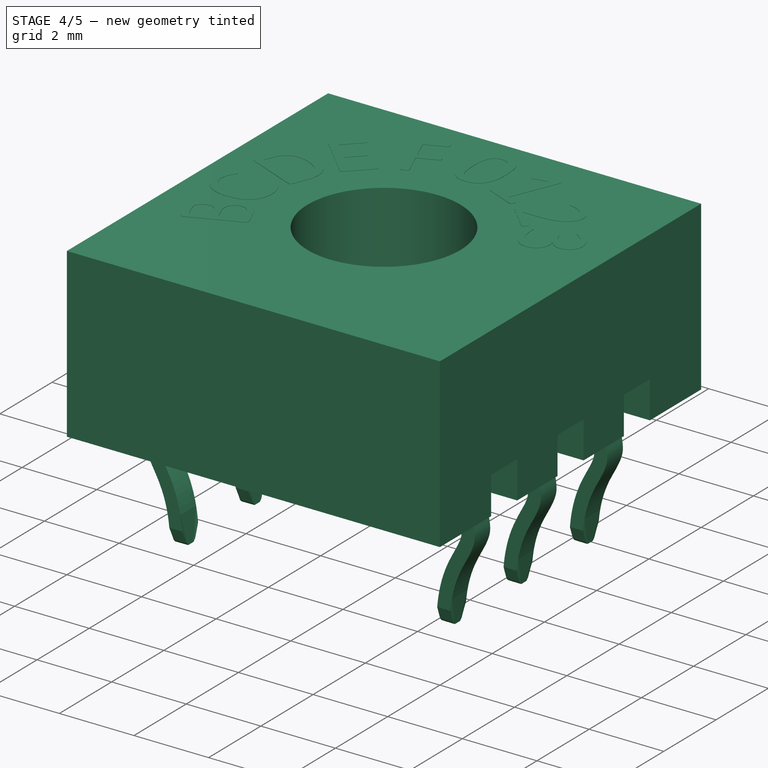
[diagram: stage 4 of 5 — iso view after this stage's code; geometry added in this stage tinted green]
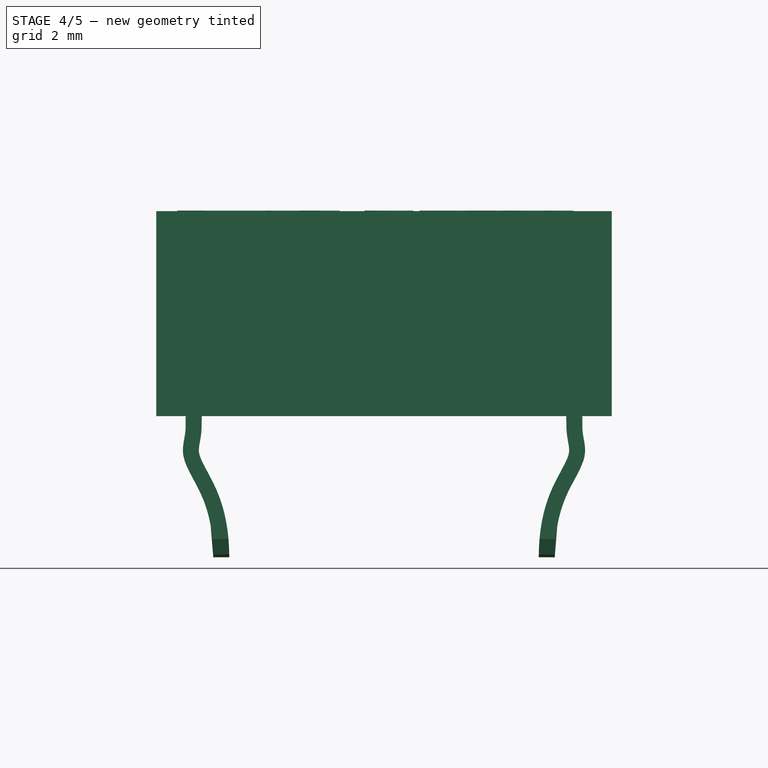
[diagram: stage 4 of 5 — front view after this stage's code; geometry added in this stage tinted green]
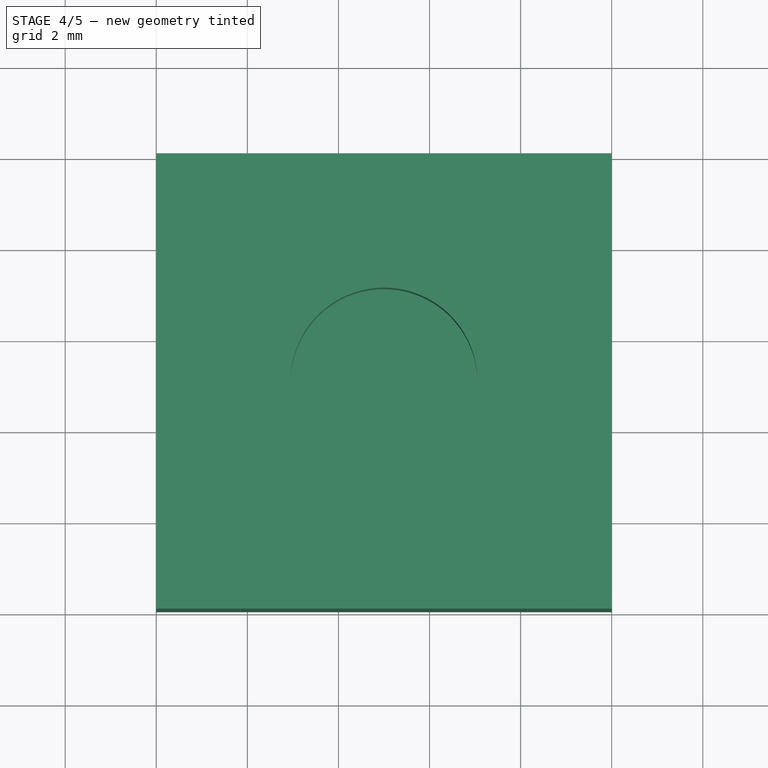
[diagram: stage 4 of 5 — top view after this stage's code; geometry added in this stage tinted green]
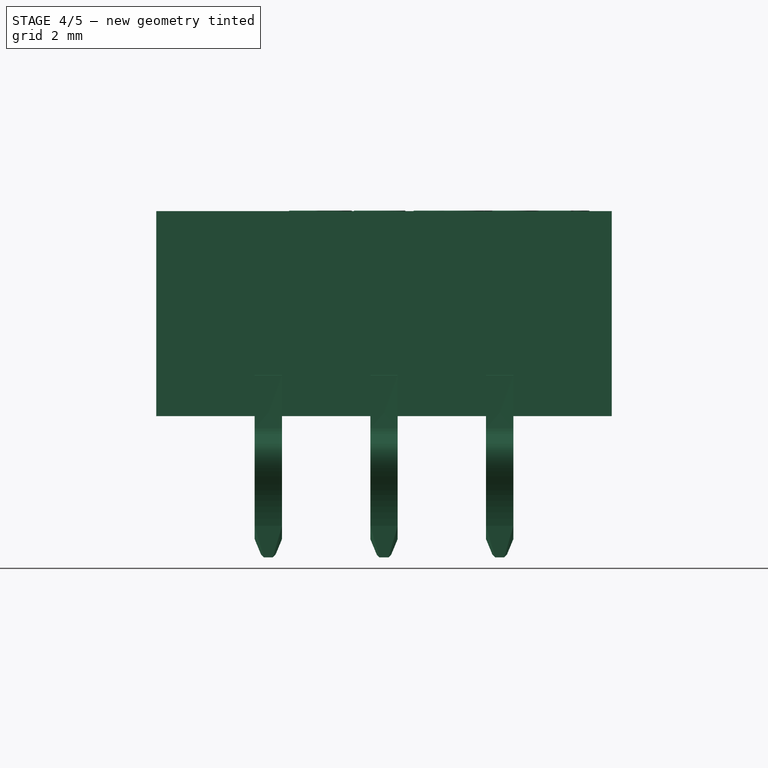
[diagram: stage 4 of 5 — right view after this stage's code; geometry added in this stage tinted green]
FEATURE [Part::Extrusion] Extrude007  label="ExtrudeB"
  Base = -> ShapeString009
  Dir = (0,0,1)
  DirMode = 2
  FaceMakerClass = Part::FaceMakerBullseye
  LengthFwd = 0.01
  LengthRev = 0
  Solid = false
  Symmetric = false
FEATURE [Part::Extrusion] Extrude008  label="ExtrudeC"
  Base = -> ShapeString008
  Dir = (0,0,1)
  DirMode = 2
  FaceMakerClass = Part::FaceMakerBullseye
  LengthFwd = 0.01
  LengthRev = 0
  Solid = false
  Symmetric = false
FEATURE [Part::Extrusion] Extrude009  label="ExtrudeD"
  Base = -> ShapeString007
  Dir = (0,0,1)
  DirMode = 2
  FaceMakerClass = Part::FaceMakerBullseye
  LengthFwd = 0.01
  LengthRev = 0
  Solid = false
  Symmetric = false
FEATURE [Part::Extrusion] Extrude010  label="ExtrudeF"
  Base = -> ShapeString005
  Dir = (0,0,1)
  DirMode = 2
  FaceMakerClass = Part::FaceMakerBullseye
  LengthFwd = 0.01
  LengthRev = 0
  Solid = false
  Symmetric = false
FEATURE [Part::Extrusion] Extrude011  label="Extrude2"
  Base = -> ShapeString002
  Dir = (0,0,1)
  DirMode = 2
  FaceMakerClass = Part::FaceMakerBullseye
  LengthFwd = 0.01
  LengthRev = 0
  Solid = false
  Symmetric = false
FEATURE [Part::Extrusion] Extrude012  label="Extrude1"
  Base = -> ShapeString003
  Dir = (0,0,1)
  DirMode = 2
  FaceMakerClass = Part::FaceMakerBullseye
  LengthFwd = 0.01
  LengthRev = 0
  Solid = false
  Symmetric = false
FEATURE [Part::Extrusion] Extrude013  label="ExtrudeE"
  Base = -> ShapeString006
  Dir = (0,0,1)
  DirMode = 2
  FaceMakerClass = Part::FaceMakerBullseye
  LengthFwd = 0.01
  LengthRev = 0
  Solid = false
  Symmetric = false
FEATURE [Part::Extrusion] Extrude014  label="Extrude0"
  Base = -> ShapeString004
  Dir = (0,0,1)
  DirMode = 2
  FaceMakerClass = Part::FaceMakerBullseye
  LengthFwd = 0.01
  LengthRev = 0
  Solid = false
  Symmetric = false
FEATURE [Part::Extrusion] Extrude015  label="Extrude3"
  Base = -> ShapeString001
  Dir = (0,0,1)
  DirMode = 2
  FaceMakerClass = Part::FaceMakerBullseye
  LengthFwd = 0.01
  LengthRev = 0
  Solid = false
  Symmetric = false
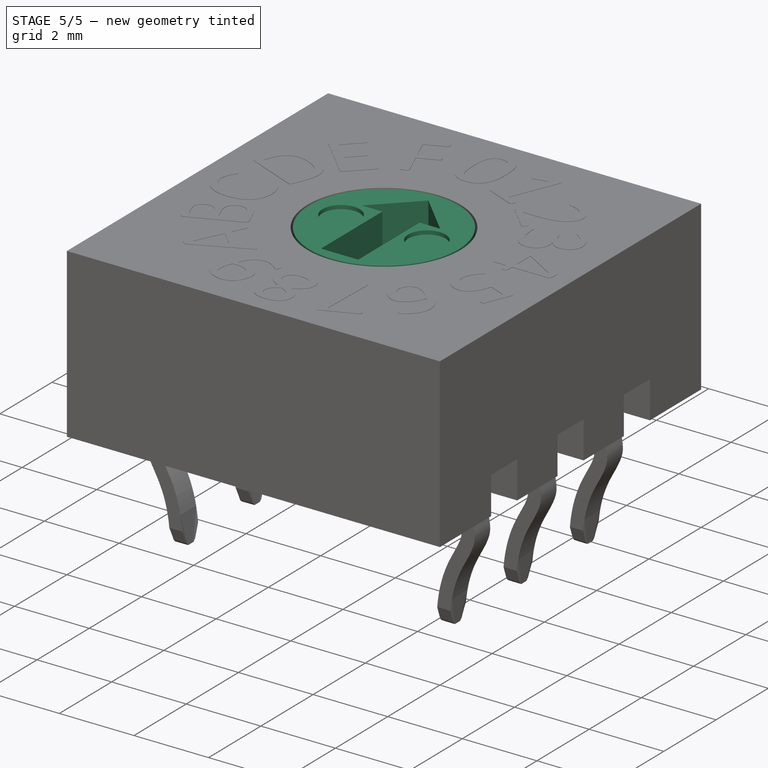
[diagram: stage 5 of 5 — iso view after this stage's code; geometry added in this stage tinted green]
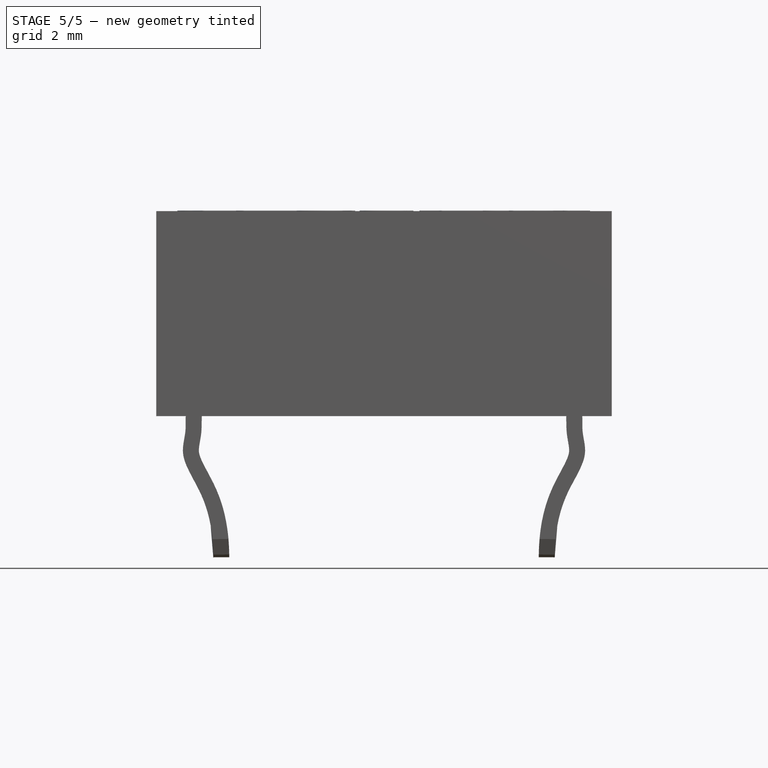
[diagram: stage 5 of 5 — front view after this stage's code; geometry added in this stage tinted green]
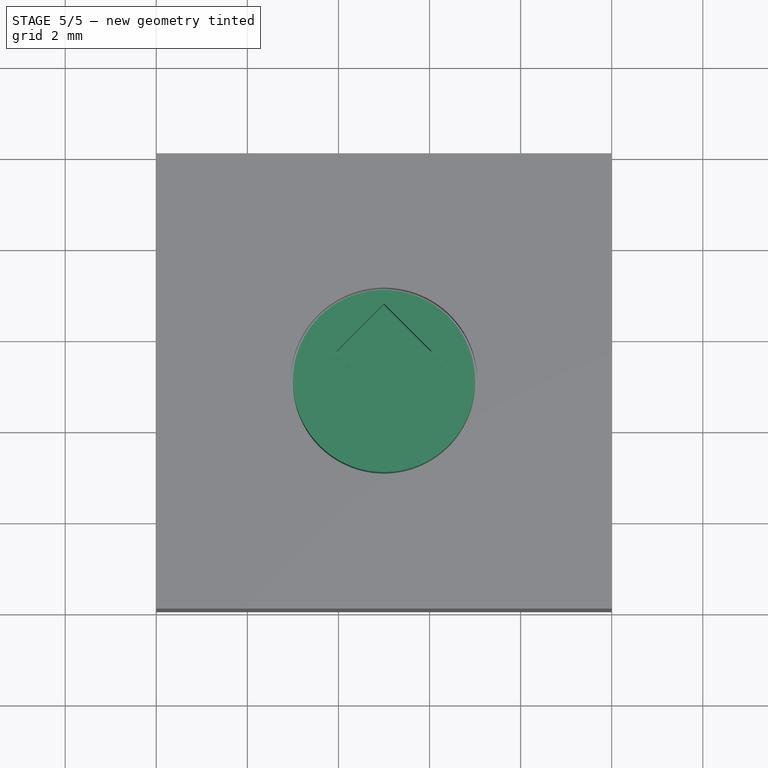
[diagram: stage 5 of 5 — top view after this stage's code; geometry added in this stage tinted green]
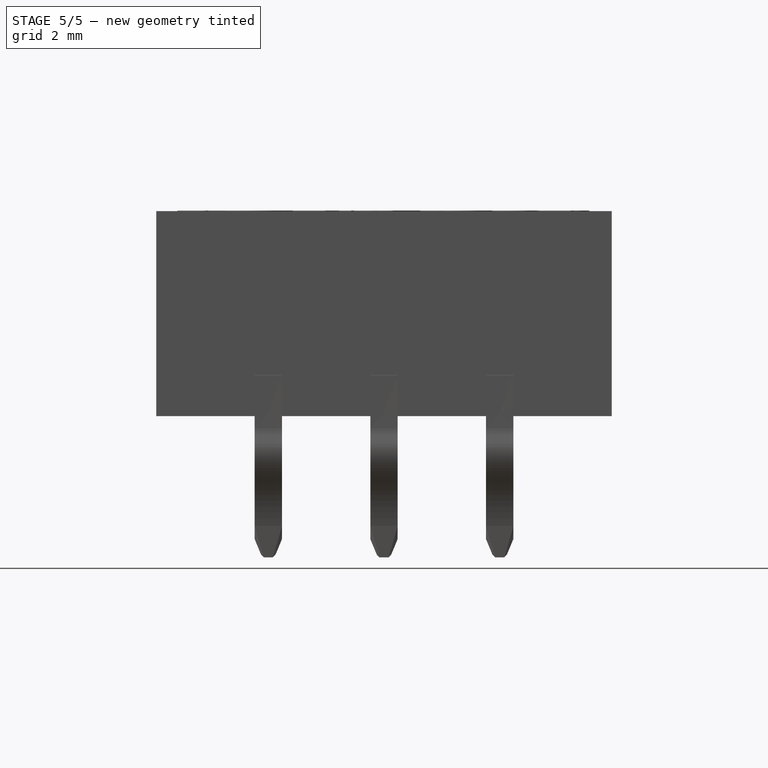
[diagram: stage 5 of 5 — right view after this stage's code; geometry added in this stage tinted green]
FEATURE [Sketcher::SketchObject] Sketch004
  AttachmentOffset = pos=(0,0,2.5) rot=(0,0,1;0rad)
  MapMode = 5
  Placement = pos=(0,0,2.5) rot=(0,0,1;0rad)
  Support = -> [XY_Plane001]
  sketch-geometry (5):
    g0: LineSegment [constr] StartX=0 StartY=0 StartZ=0 EndX=10 EndY=0 EndZ=0
    g1: LineSegment [constr] StartX=10 StartY=0 StartZ=0 EndX=10 EndY=10 EndZ=0
    g2: LineSegment [constr] StartX=10 StartY=10 StartZ=0 EndX=0 EndY=10 EndZ=0
    g3: LineSegment [constr] StartX=0 StartY=10 StartZ=0 EndX=0 EndY=0 EndZ=0
    g4: Circle CenterX=5 CenterY=5 CenterZ=0 NormalX=0 NormalY=0 NormalZ=1 AngleXU=0 Radius=2
  constraints (13):
    c: Coincident(g0,g1)
    c: Coincident(g1,g2)
    c: Coincident(g2,g3)
    c: Coincident(g3,g0)
    c: Horizontal(g0)
    c: Horizontal(g2)
    c: Vertical(g1)
    c: Vertical(g3)
    c: Equal(g2,g1)
    c: DistanceX(g2,g2) = 10
    c: Radius(g4) = 2
    c: Symmetric(g2,g0,g4)
    c: Coincident(g0,g-1)
FEATURE [PartDesign::Pad] Pad001
  Length = 2
  Length2 = 100
  Profile = -> Sketch004
  Type = 0
FEATURE [Sketcher::SketchObject] Sketch003
  MapMode = 5
  Placement = pos=(0,0,4.5) rot=(0,0,1;0rad)
  Support = -> [Pad001]
  sketch-geometry (15):
    g0: LineSegment [constr] StartX=0 StartY=0 StartZ=0 EndX=10 EndY=0 EndZ=0
    g1: LineSegment [constr] StartX=10 StartY=0 StartZ=0 EndX=10 EndY=10 EndZ=0
    g2: LineSegment [constr] StartX=10 StartY=10 StartZ=0 EndX=0 EndY=10 EndZ=0
    g3: LineSegment [constr] StartX=0 StartY=10 StartZ=0 EndX=0 EndY=0 EndZ=0
    g4: LineSegment StartX=4.5 StartY=3.3 StartZ=0 EndX=4.5 EndY=5.65 EndZ=0
    g5: LineSegment StartX=4.5 StartY=5.65 StartZ=0 EndX=3.95 EndY=5.65 EndZ=0
    g6: LineSegment StartX=3.95 StartY=5.65 StartZ=0 EndX=5 EndY=6.7 EndZ=0
    g7: LineSegment StartX=5 StartY=6.7 StartZ=0 EndX=6.05 EndY=5.65 EndZ=0
    g8: LineSegment StartX=6.05 StartY=5.65 StartZ=0 EndX=5.5 EndY=5.65 EndZ=0
    g9: LineSegment StartX=5.5 StartY=5.65 StartZ=0 EndX=5.5 EndY=3.3 EndZ=0
    g10: LineSegment StartX=5.5 StartY=3.3 StartZ=0 EndX=4.5 EndY=3.3 EndZ=0
    g11: LineSegment [constr] StartX=5 StartY=5 StartZ=0 EndX=4.5 EndY=5 EndZ=0
    g12: LineSegment [constr] StartX=5 StartY=5 StartZ=0 EndX=5.5 EndY=5 EndZ=0
    g13: LineSegment [constr] StartX=5 StartY=6.7 StartZ=0 EndX=5 EndY=5 EndZ=0
    g14: LineSegment [constr] StartX=5 StartY=5 StartZ=0 EndX=5 EndY=3.3 EndZ=0
  constraints (43):
    c: Coincident(g0,g1)
    c: Coincident(g1,g2)
    c: Coincident(g2,g3)
    c: Coincident(g3,g0)
    c: Horizontal(g0)
    c: Horizontal(g2)
    c: Vertical(g1)
    c: Vertical(g3)
    c: Coincident(g0,g-1)
    c: Equal(g3,g2)
    c: DistanceX(g2,g2) = 10
    c: Vertical(g4)
    c: Coincident(g4,g5)
    c: Coincident(g5,g6)
    c: Coincident(g6,g7)
    c: Coincident(g7,g8)
    c: Coincident(g8,g9)
    c: Vertical(g9)
    c: Coincident(g9,g10)
    c: Coincident(g10,g4)
    c: Horizontal(g10)
    c: Horizontal(g8)
    c: Horizontal(g5)
    c: Perpendicular(g7,g6)
    c: Equal(g7,g6)
    c: Horizontal(g8,g4)
    c: Equal(g5,g8)
    c: DistanceX(g10,g10) = 1
    c: DistanceY(g9,g6) = 3.4
    c: DistanceX(g5,g7) = 2.1
    c: PointOnObject(g11,g4)
    c: Horizontal(g11)
    c: PointOnObject(g12,g9)
    c: Horizontal(g12)
    c: Equal(g11,g12)
    c: Coincident(g13,g6)
    c: PointOnObject(g14,g10)
    c: Vertical(g14)
    c: Equal(g14,g13)
    c: Coincident(g13,g14)
    c: Coincident(g13,g11)
    c: Coincident(g12,g11)
    c: Symmetric(g2,g0,g11)
FEATURE [PartDesign::Pocket] Pocket001
  BaseFeature = -> Pad001
  Length = 1.5
  Length2 = 100
  Profile = -> Sketch003
  Type = 0
FEATURE [Sketcher::SketchObject] Sketch005
  MapMode = 5
  Placement = pos=(0,0,4.5) rot=(0,0,1;0rad)
  Support = -> [Pocket001]
  sketch-geometry (19):
    g0: LineSegment [constr] StartX=0 StartY=10 StartZ=0 EndX=10 EndY=10 EndZ=0
    g1: LineSegment [constr] StartX=10 StartY=10 StartZ=0 EndX=10 EndY=0 EndZ=0
    g2: LineSegment [constr] StartX=10 StartY=0 StartZ=0 EndX=0 EndY=0 EndZ=0
    g3: LineSegment [constr] StartX=0 StartY=0 StartZ=0 EndX=0 EndY=10 EndZ=0
    g4: LineSegment [constr] StartX=4.5 StartY=3.3 StartZ=0 EndX=4.5 EndY=5.65 EndZ=0
    g5: LineSegment [constr] StartX=4.5 StartY=5.65 StartZ=0 EndX=3.95 EndY=5.65 EndZ=0
    g6: LineSegment [constr] StartX=3.95 StartY=5.65 StartZ=0 EndX=5 EndY=6.7 EndZ=0
    g7: LineSegment [constr] StartX=5 StartY=6.7 StartZ=0 EndX=6.05 EndY=5.65 EndZ=0
    g8: LineSegment [constr] StartX=6.05 StartY=5.65 StartZ=0 EndX=5.5 EndY=5.65 EndZ=0
    g9: LineSegment [constr] StartX=5.5 StartY=5.65 StartZ=0 EndX=5.5 EndY=3.3 EndZ=0
    g10: LineSegment [constr] StartX=5.5 StartY=3.3 StartZ=0 EndX=4.5 EndY=3.3 EndZ=0
    g11: LineSegment [constr] StartX=4.5 StartY=5 StartZ=0 EndX=5 EndY=5 EndZ=0
    g12: LineSegment [constr] StartX=5 StartY=5 StartZ=0 EndX=5.5 EndY=5 EndZ=0
    g13: LineSegment [constr] StartX=5 StartY=5 StartZ=0 EndX=5 EndY=3.3 EndZ=0
    g14: LineSegment [constr] StartX=5 StartY=5 StartZ=0 EndX=5 EndY=6.7 EndZ=0
    g15: Circle CenterX=3.85 CenterY=5 CenterZ=0 NormalX=0 NormalY=0 NormalZ=1 AngleXU=0 Radius=0.5
    g16: Circle CenterX=6.15 CenterY=5 CenterZ=0 NormalX=0 NormalY=0 NormalZ=1 AngleXU=0 Radius=0.5
    g17: LineSegment [constr] StartX=3.85 StartY=5 StartZ=0 EndX=4.5 EndY=5.65 EndZ=0
    g18: LineSegment [constr] StartX=5.5 StartY=5.65 StartZ=0 EndX=6.15 EndY=5 EndZ=0
  constraints (53):
    c: Coincident(g0,g1)
    c: Coincident(g1,g2)
    c: Coincident(g2,g3)
    c: Coincident(g3,g0)
    c: Horizontal(g0)
    c: Horizontal(g2)
    c: Vertical(g1)
    c: Vertical(g3)
    c: Equal(g0,g1)
    c: DistanceX(g0,g0) = 10
    c: Coincident(g2,g-1)
    c: Vertical(g4)
    c: Coincident(g4,g5)
    c: Horizontal(g5)
    c: Coincident(g5,g6)
    c: Coincident(g6,g7)
    c: Coincident(g7,g8)
    c: Coincident(g8,g9)
    c: Coincident(g9,g10)
    c: Coincident(g10,g4)
    c: Horizontal(g10)
    c: Horizontal(g8)
    c: Horizontal(g8,g4)
    c: Equal(g6,g7)
    c: Vertical(g9)
    c: Equal(g8,g5)
    c: DistanceY(g9,g6) = 3.4
    c: DistanceX(g10,g10) = 1
    c: DistanceX(g5,g7) = 2.1
    c: PointOnObject(g11,g4)
    c: Horizontal(g11)
    c: Coincident(g12,g11)
    c: PointOnObject(g12,g9)
    c: Horizontal(g12)
    c: Coincident(g13,g11)
    c: PointOnObject(g13,g10)
    c: Vertical(g13)
    c: Coincident(g14,g11)
    c: Coincident(g14,g6)
    c: Equal(g12,g11)
    c: Equal(g14,g13)
    c: Symmetric(g0,g-1,g11)
    c: Perpendicular(g6,g7)
    c: Horizontal(g16,g15)
    c: Equal(g15,g16)
    c: Radius(g15) = 0.5
    c: Coincident(g17,g15)
    c: Coincident(g17,g4)
    c: Coincident(g18,g8)
    c: Coincident(g18,g16)
    c: Perpendicular(g17,g18)
    c: Equal(g17,g18)
    c: Horizontal(g15,g11)
FEATURE [PartDesign::Pocket] Pocket002
  BaseFeature = -> Pocket001
  Length = 0.1
  Length2 = 100
  Profile = -> Sketch005
  Type = 0
FEATURE [PartDesign::Body] Body001  label="Rotary"
  Group = -> [Sketch004,Pad001,Sketch003,Pocket001,Sketch005,Pocket002]
  Origin = -> Origin001
  Tip = -> Pocket002
FEATURE [Part::Part2DObjectPython] ShapeString  label="4"  # Draft 2D object (typed FeaturePython)
  FontFile = <path>
  Placement = pos=(7.98634,5.86012,4.5) rot=(0,0,-1;1.5708rad)
  Size = 2
  String = 4
  Tracking = 0
FEATURE [Part::Part2DObjectPython] ShapeString015  label="5"  # Draft 2D object (typed FeaturePython)
  FontFile = <path>
  Placement = pos=(8.02088,4.5047,4.5) rot=(0,0,-1;1.96349rad)
  Size = 2
  String = 5
  Tracking = 0
FEATURE [Part::Part2DObjectPython] ShapeString014  label="6"  # Draft 2D object (typed FeaturePython)
  FontFile = <path>
  Placement = pos=(7.54538,3.31066,4.5) rot=(0,0,1;3.92699rad)
  Size = 2
  String = 6
  Tracking = 0
FEATURE [Part::Part2DObjectPython] ShapeString011  label="9"  # Draft 2D object (typed FeaturePython)
  FontFile = <path>
  Placement = pos=(4.53614,1.97395,4.5) rot=(0,0,1;2.74889rad)
  Size = 2
  String = 9
  Tracking = 0
FEATURE [Part::Part2DObjectPython] ShapeString010  label="A"  # Draft 2D object (typed FeaturePython)
  FontFile = <path>
  Placement = pos=(3.41273,2.43721,4.5) rot=(0,0,1;2.35619rad)
  Size = 2
  String = A
  Tracking = 0
FEATURE [Part::Part2DObjectPython] ShapeString012  label="8"  # Draft 2D object (typed FeaturePython)
  FontFile = <path>
  Placement = pos=(5.6096,2,4.5) rot=(0,0,1;3.14159rad)
  Size = 2
  String = 8
  Tracking = 0
FEATURE [Part::Part2DObjectPython] ShapeString013  label="7"  # Draft 2D object (typed FeaturePython)
  FontFile = <path>
  Placement = pos=(6.71267,2.48035,4.5) rot=(0,0,1;3.53429rad)
  Size = 2
  String = 7
  Tracking = 0
FEATURE [Part::Part2DObjectPython] ShapeString009  label="B"  # Draft 2D object (typed FeaturePython)
  FontFile = <path>
  Placement = pos=(2.50872,3.29236,4.5) rot=(0,0,1;1.96349rad)
  Size = 2
  String = B
  Tracking = 0
FEATURE [Part::Part2DObjectPython] ShapeString008  label="C"  # Draft 2D object (typed FeaturePython)
  FontFile = <path>
  Placement = pos=(2,4.2248,4.5) rot=(0,0,1;1.5708rad)
  Size = 2
  String = C
  Tracking = 0
FEATURE [Part::Part2DObjectPython] ShapeString007  label="D"  # Draft 2D object (typed FeaturePython)
  FontFile = <path>
  Placement = pos=(1.95593,5.43754,4.5) rot=(0,0,1;1.1781rad)
  Size = 2
  String = D
  Tracking = 0
FEATURE [Part::Part2DObjectPython] ShapeString005  label="F"  # Draft 2D object (typed FeaturePython)
  FontFile = <path>
  Placement = pos=(3.38197,7.56921,4.5) rot=(0,0,1;0.392699rad)
  Size = 2
  String = F
  Tracking = 0
FEATURE [Part::Part2DObjectPython] ShapeString002  label="2"  # Draft 2D object (typed FeaturePython)
  FontFile = <path>
  Placement = pos=(6.67603,7.54024,4.5) rot=(0,0,-1;0.785398rad)
  Size = 2
  String = 2
  Tracking = 0
FEATURE [Part::Part2DObjectPython] ShapeString003  label="1"  # Draft 2D object (typed FeaturePython)
  FontFile = <path>
  Placement = pos=(5.56414,8.00042,4.5) rot=(0,0,-1;0.392699rad)
  Size = 2
  String = 1
  Tracking = 0
FEATURE [Part::Part2DObjectPython] ShapeString006  label="E"  # Draft 2D object (typed FeaturePython)
  FontFile = <path>
  Placement = pos=(2.41482,6.65746,4.5) rot=(0,0,1;0.785398rad)
  Size = 2
  String = E
  Tracking = 0
FEATURE [Part::Part2DObjectPython] ShapeString004  label="0"  # Draft 2D object (typed FeaturePython)
  FontFile = <path>
  Placement = pos=(4.48454,7.9744,4.5) rot=(0,0,-1;0rad)
  Size = 2
  String = 0
  Tracking = 0
FEATURE [Part::Part2DObjectPython] ShapeString001  label="3"  # Draft 2D object (typed FeaturePython)
  FontFile = <path>
  Placement = pos=(7.46386,6.83834,4.5) rot=(0,0,-1;1.1781rad)
  Size = 2
  String = 3
  Tracking = 0
FEATURE [Part::Part2DObjectPython] Circle  # Draft 2D object (typed FeaturePython)
  FirstAngle = 0
  LastAngle = 0
  MakeFace = false
  Placement = pos=(5,5,4.5) rot=(0,0,1;0rad)
  Radius = 3
  Support = -> [Pocket]
FEATURE [Part::Extrusion] Extrude  label="Extrude4"
  Base = -> ShapeString
  Dir = (0,0,1)
  DirMode = 2
  FaceMakerClass = Part::FaceMakerBullseye
  LengthFwd = 0.01
  LengthRev = 0
  Solid = false
  Symmetric = false
FEATURE [Part::Extrusion] Extrude001  label="Extrude5"
  Base = -> ShapeString015
  Dir = (0,0,1)
  DirMode = 2
  FaceMakerClass = Part::FaceMakerBullseye
  LengthFwd = 0.01
  LengthRev = 0
  Solid = false
  Symmetric = false
FEATURE [Part::Extrusion] Extrude002  label="Extrude6"
  Base = -> ShapeString014
  Dir = (0,0,1)
  DirMode = 2
  FaceMakerClass = Part::FaceMakerBullseye
  LengthFwd = 0.01
  LengthRev = 0
  Solid = false
  Symmetric = false
FEATURE [Part::Extrusion] Extrude003  label="Extrude9"
  Base = -> ShapeString011
  Dir = (0,0,1)
  DirMode = 2
  FaceMakerClass = Part::FaceMakerBullseye
  LengthFwd = 0.01
  LengthRev = 0
  Solid = false
  Symmetric = false
FEATURE [Part::Extrusion] Extrude004  label="ExtrudeA"
  Base = -> ShapeString010
  Dir = (0,0,1)
  DirMode = 2
  FaceMakerClass = Part::FaceMakerBullseye
  LengthFwd = 0.01
  LengthRev = 0
  Solid = false
  Symmetric = false
FEATURE [Part::Extrusion] Extrude005  label="Extrude8"
  Base = -> ShapeString012
  Dir = (0,0,1)
  DirMode = 2
  FaceMakerClass = Part::FaceMakerBullseye
  LengthFwd = 0.01
  LengthRev = 0
  Solid = false
  Symmetric = false
FEATURE [Part::Extrusion] Extrude006  label="Extrude7"
  Base = -> ShapeString013
  Dir = (0,0,1)
  DirMode = 2
  FaceMakerClass = Part::FaceMakerBullseye
  LengthFwd = 0.01
  LengthRev = 0
  Solid = false
  Symmetric = false
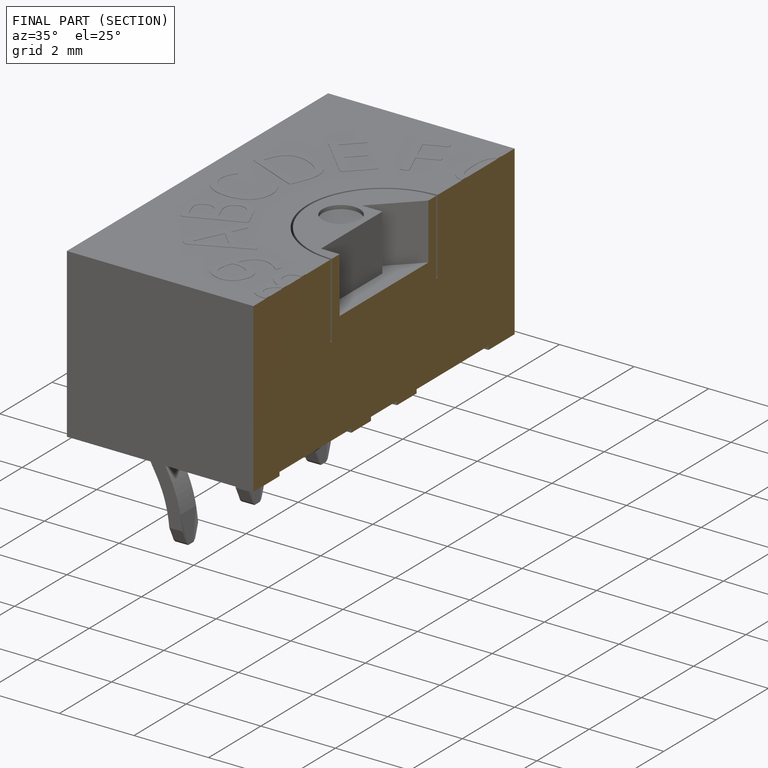
[diagram: finished part — half-section view (interior)]
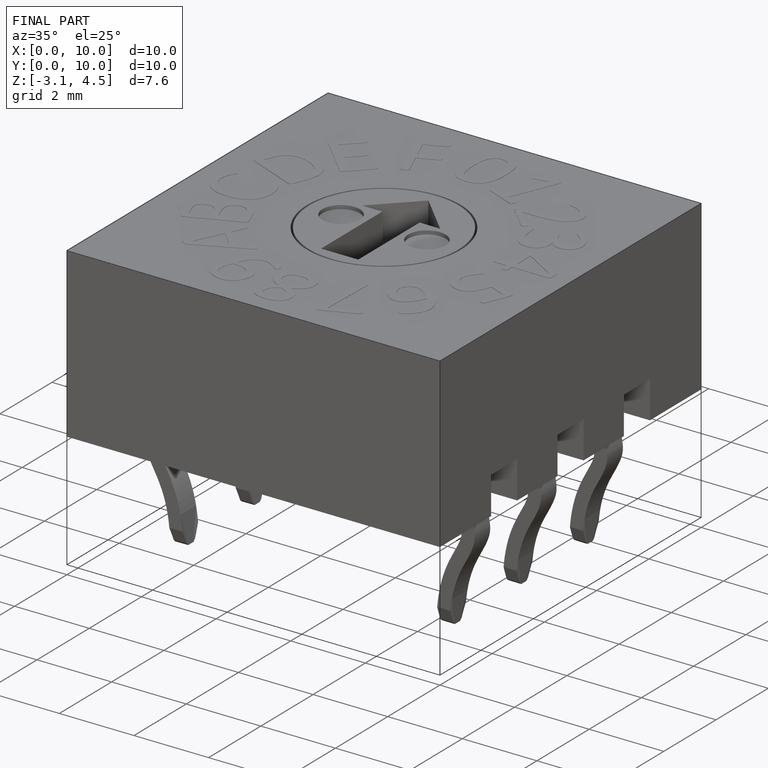
[diagram: finished part — iso view with bounding-box wireframe]
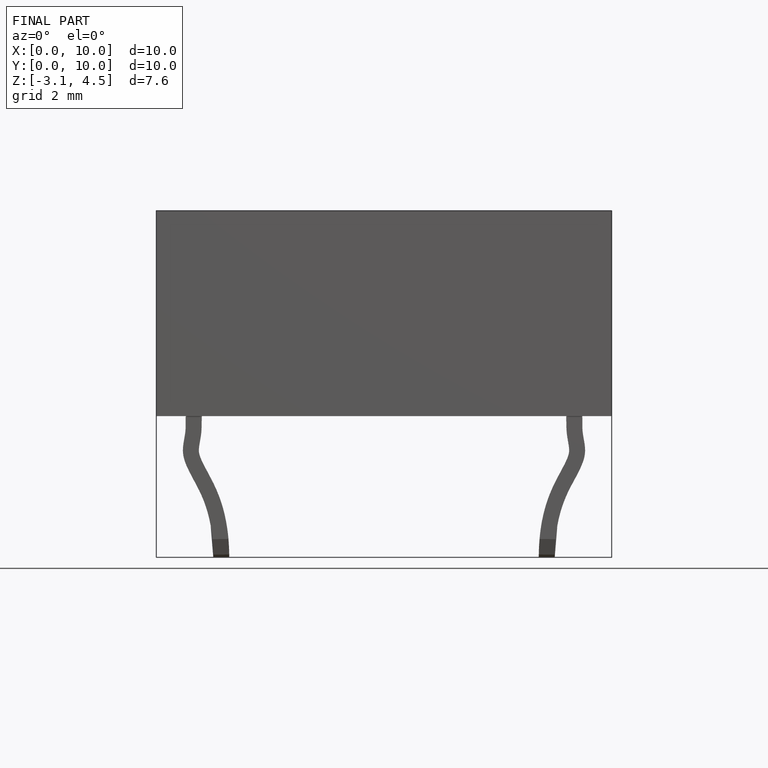
[diagram: finished part — front view with bounding-box wireframe]
